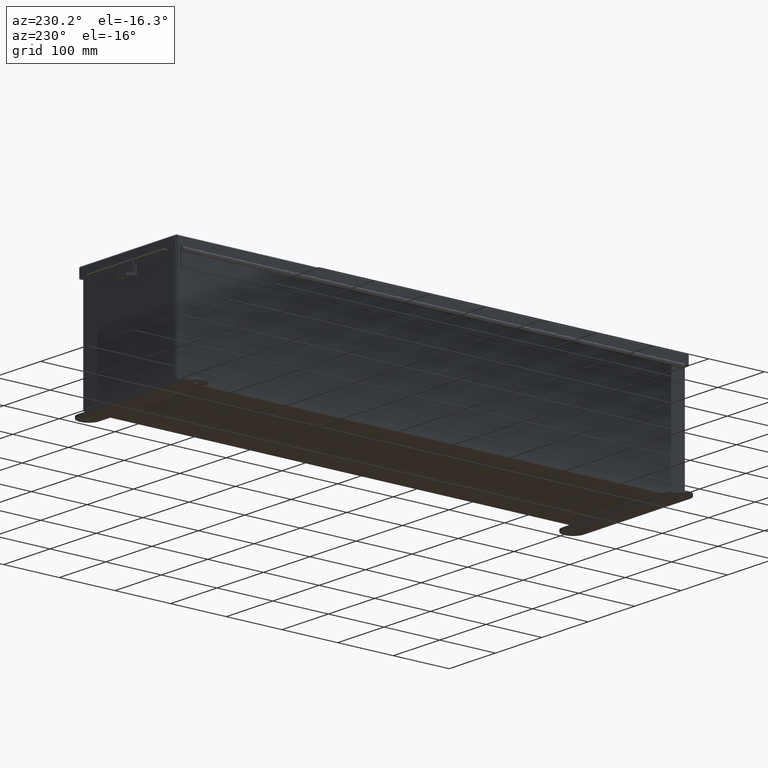
[diagram: clean part render]
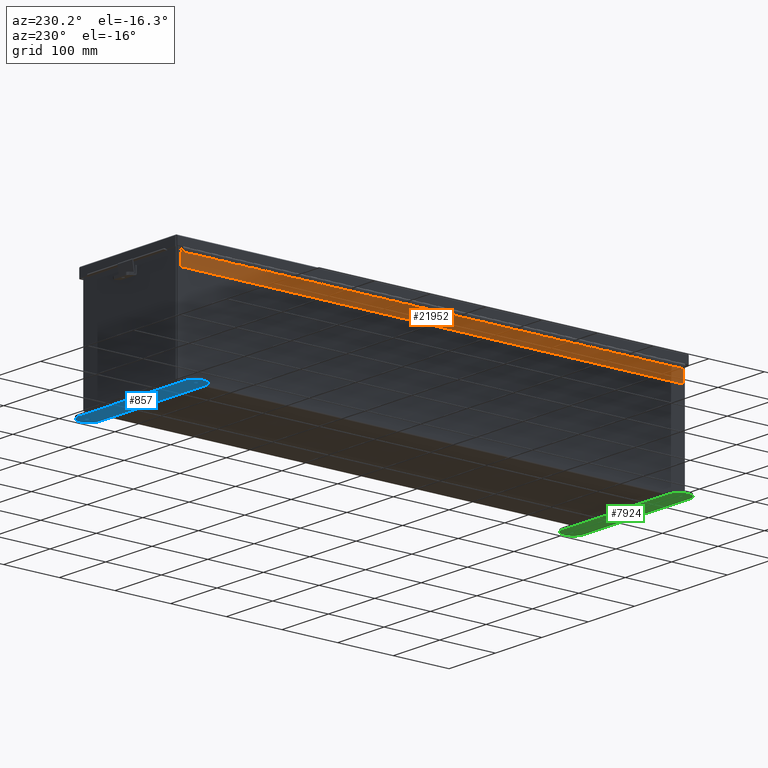
[diagram: same view with three faces highlighted in distinct colors, each labeled with its STEP entity id]
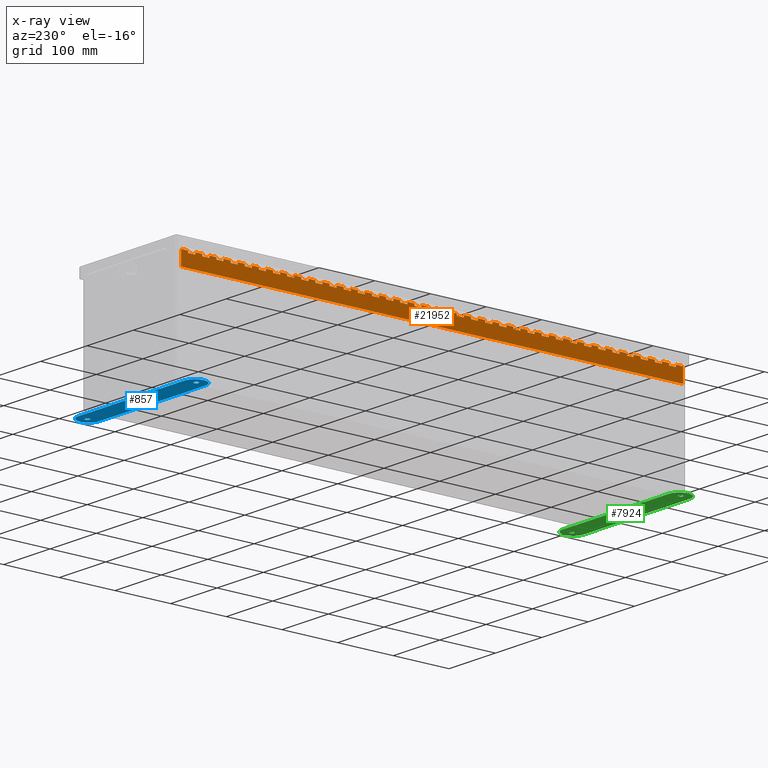
[diagram: x-ray of the same camera — body ghosted, the three highlighted faces saturated]
A machine part, auxiliary view with three faces highlighted in distinct colors.
The next image is the same camera in x-ray (body ghosted, the three faces saturated) — at least one of them is partly hidden behind the body in this view.
Their STEP definitions:

[orange] entity #21952 — the highlighted planar face has unit normal (1, -0, 0).
#5 = EDGE_CURVE ( 'NONE', #345, #17720, #3837, .T. ) ;
#13 = VERTEX_POINT ( 'NONE', #1578 ) ;
#36 = CARTESIAN_POINT ( 'NONE',  ( 0.2729999999999989700, 12.99999999999999300, 1.092739197465705300E-015 ) ) ;
#91 = EDGE_CURVE ( 'NONE', #1788, #345, #19818, .T. ) ;
#93 = VECTOR ( 'NONE', #17547, 39.37007874015748100 ) ;
#114 = ORIENTED_EDGE ( 'NONE', *, *, #22981, .F. ) ;
#117 = LINE ( 'NONE', #902, #12580 ) ;
#133 = EDGE_CURVE ( 'NONE', #14898, #1788, #6410, .T. ) ;
#180 = ORIENTED_EDGE ( 'NONE', *, *, #18503, .F. ) ;
#205 = EDGE_CURVE ( 'NONE', #14898, #4100, #16333, .T. ) ;
#207 = DIRECTION ( 'NONE',  ( -1.346685630687589600E-017, 1.000000000000000000, -1.066047361788676700E-030 ) ) ;
#212 = VERTEX_POINT ( 'NONE', #19961 ) ;
#216 = DIRECTION ( 'NONE',  ( -1.000000000000000000, 8.013101163815309000E-029, 2.603240987229339000E-029 ) ) ;
#247 = EDGE_CURVE ( 'NONE', #10452, #4100, #14948, .T. ) ;
#288 = EDGE_CURVE ( 'NONE', #6674, #10452, #24687, .T. ) ;
#308 = EDGE_CURVE ( 'NONE', #28410, #15100, #23992, .T. ) ;
#335 = EDGE_CURVE ( 'NONE', #18965, #6674, #23280, .T. ) ;
#345 = VERTEX_POINT ( 'NONE', #18168 ) ;
#365 = VERTEX_POINT ( 'NONE', #1592 ) ;
#391 = CARTESIAN_POINT ( 'NONE',  ( 0.1365000000000000400, 0.0000000000000000000, 1.639108796198557900E-015 ) ) ;
#409 = LINE ( 'NONE', #20000, #21821 ) ;
#431 = EDGE_CURVE ( 'NONE', #18965, #15647, #3811, .T. ) ;
#455 = CARTESIAN_POINT ( 'NONE',  ( 0.1364999999999880200, 16.49999999999998900, 5.463695987328526400E-016 ) ) ;
#487 = DIRECTION ( 'NONE',  ( -1.000000000000000000, 8.013101163815309000E-029, 2.603240987229339000E-029 ) ) ;
#491 = EDGE_CURVE ( 'NONE', #14647, #20477, #23637, .T. ) ;
#515 = EDGE_CURVE ( 'NONE', #12311, #15647, #16995, .T. ) ;
#524 = DIRECTION ( 'NONE',  ( -8.013101163815309000E-029, 1.000000000000000000, -6.810147738116276900E-017 ) ) ;
#536 = LINE ( 'NONE', #6670, #12296 ) ;
#587 = CARTESIAN_POINT ( 'NONE',  ( 0.0000000000000000000, 2.999999999999993300, -3.824587191129968100E-015 ) ) ;
#616 = EDGE_CURVE ( 'NONE', #26922, #12311, #25324, .T. ) ;
#626 = VERTEX_POINT ( 'NONE', #901 ) ;
#649 = DIRECTION ( 'NONE',  ( -1.346685630687589600E-017, 1.000000000000000000, -1.066047361788676700E-030 ) ) ;
#669 = EDGE_CURVE ( 'NONE', #12020, #26922, #12223, .T. ) ;
#679 = LINE ( 'NONE', #17917, #6193 ) ;
#680 = VERTEX_POINT ( 'NONE', #28075 ) ;
#697 = CARTESIAN_POINT ( 'NONE',  ( 0.1365000000000000400, 23.49999999999999300, 0.0000000000000000000 ) ) ;
#726 = DIRECTION ( 'NONE',  ( -1.346685630687589600E-017, 1.000000000000000000, -1.066047361788676700E-030 ) ) ;
#753 = EDGE_CURVE ( 'NONE', #12020, #23545, #3783, .T. ) ;
#779 = CARTESIAN_POINT ( 'NONE',  ( 0.2730000000000000800, 7.999999999999993800, 2.185478394931410600E-015 ) ) ;
#790 = ORIENTED_EDGE ( 'NONE', *, *, #15547, .T. ) ;
#803 = EDGE_CURVE ( 'NONE', #6368, #23545, #8556, .T. ) ;
#816 = EDGE_CURVE ( 'NONE', #23621, #6368, #7841, .T. ) ;
#826 = LINE ( 'NONE', #28203, #93 ) ;
#843 = VERTEX_POINT ( 'NONE', #24572 ) ;
#886 = DIRECTION ( 'NONE',  ( -1.000000000000000000, 8.013101163815309000E-029, 2.603240987229339000E-029 ) ) ;
#895 = EDGE_CURVE ( 'NONE', #18681, #23621, #11859, .T. ) ;
#901 = CARTESIAN_POINT ( 'NONE',  ( 0.2729999999999989700, 34.49999999999999300, 0.0000000000000000000 ) ) ;
#902 = CARTESIAN_POINT ( 'NONE',  ( 0.0000000000000000000, 34.49999999999999300, 0.0000000000000000000 ) ) ;
#908 = VECTOR ( 'NONE', #20542, 39.37007874015748100 ) ;
#916 = EDGE_CURVE ( 'NONE', #22251, #10091, #15601, .T. ) ;
#930 = CARTESIAN_POINT ( 'NONE',  ( 0.2730000000000000800, -0.9999999999999992200, 0.0000000000000000000 ) ) ;
#945 = EDGE_CURVE ( 'NONE', #18681, #23829, #25299, .T. ) ;
#1027 = EDGE_CURVE ( 'NONE', #16324, #23829, #5232, .T. ) ;
#1070 = EDGE_CURVE ( 'NONE', #843, #16324, #3747, .T. ) ;
#1075 = ORIENTED_EDGE ( 'NONE', *, *, #25761, .F. ) ;
#1104 = CARTESIAN_POINT ( 'NONE',  ( 0.2730000000000000800, 20.49999999999998900, 1.092739197465705300E-015 ) ) ;
#1120 = EDGE_CURVE ( 'NONE', #15327, #843, #13204, .T. ) ;
#1156 = ORIENTED_EDGE ( 'NONE', *, *, #1327, .T. ) ;
#1175 = ORIENTED_EDGE ( 'NONE', *, *, #12664, .F. ) ;
#1176 = VECTOR ( 'NONE', #16857, 39.37007874015748100 ) ;
#1210 = LINE ( 'NONE', #16036, #24644 ) ;
#1221 = EDGE_CURVE ( 'NONE', #15327, #22045, #16252, .T. ) ;
#1260 = EDGE_CURVE ( 'NONE', #14529, #22045, #2652, .T. ) ;
#1289 = ORIENTED_EDGE ( 'NONE', *, *, #6404, .F. ) ;
#1296 = VECTOR ( 'NONE', #15422, 39.37007874015748100 ) ;
#1316 = CARTESIAN_POINT ( 'NONE',  ( 0.0000000000000000000, 24.99999999999999300, -4.917326388595674200E-015 ) ) ;
#1327 = EDGE_CURVE ( 'NONE', #1500, #4341, #17265, .T. ) ;
#1329 = LINE ( 'NONE', #10888, #12995 ) ;
#1358 = EDGE_CURVE ( 'NONE', #20104, #14529, #409, .T. ) ;
#1430 = VERTEX_POINT ( 'NONE', #16505 ) ;
#1440 = DIRECTION ( 'NONE',  ( -1.346685630687589600E-017, 1.000000000000000000, -1.066047361788676700E-030 ) ) ;
#1454 = EDGE_CURVE ( 'NONE', #20514, #20104, #20108, .T. ) ;
#1476 = ORIENTED_EDGE ( 'NONE', *, *, #19837, .F. ) ;
#1486 = CARTESIAN_POINT ( 'NONE',  ( 0.2730000000000000800, 19.49999999999998900, 1.092739197465705300E-015 ) ) ;
#1500 = VERTEX_POINT ( 'NONE', #27288 ) ;
#1513 = EDGE_CURVE ( 'NONE', #22182, #16628, #17991, .T. ) ;
#1537 = EDGE_CURVE ( 'NONE', #20514, #27732, #23942, .T. ) ;
#1547 = VECTOR ( 'NONE', #7787, 39.37007874015748100 ) ;
#1549 = EDGE_CURVE ( 'NONE', #4544, #27732, #28496, .T. ) ;
#1578 = CARTESIAN_POINT ( 'NONE',  ( 0.2730000000000000800, 9.999999999999991100, 1.639108796198557900E-015 ) ) ;
#1592 = CARTESIAN_POINT ( 'NONE',  ( 0.2729999999999989700, 32.49999999999999300, 5.463695987328526400E-016 ) ) ;
#1647 = EDGE_CURVE ( 'NONE', #16947, #4544, #4655, .T. ) ;
#1667 = VECTOR ( 'NONE', #886, 39.37007874015748100 ) ;
#1678 = VERTEX_POINT ( 'NONE', #23783 ) ;
#1691 = EDGE_CURVE ( 'NONE', #22794, #16947, #2447, .T. ) ;
#1712 = EDGE_CURVE ( 'NONE', #4463, #8115, #18471, .T. ) ;
#1747 = ORIENTED_EDGE ( 'NONE', *, *, #1712, .F. ) ;
#1788 = VERTEX_POINT ( 'NONE', #15734 ) ;
#1822 = CARTESIAN_POINT ( 'NONE',  ( 0.2729999999999880300, -15.00000000000000900, 1.092739197465705300E-015 ) ) ;
#1909 = EDGE_CURVE ( 'NONE', #22794, #1954, #1329, .T. ) ;
#1927 = ORIENTED_EDGE ( 'NONE', *, *, #25035, .T. ) ;
#1943 = CARTESIAN_POINT ( 'NONE',  ( 0.2730000000000000800, 16.99999999999999300, 1.092739197465705300E-015 ) ) ;
#1954 = VERTEX_POINT ( 'NONE', #5509 ) ;
#1956 = EDGE_CURVE ( 'NONE', #17920, #1954, #22650, .T. ) ;
#1966 = ORIENTED_EDGE ( 'NONE', *, *, #3541, .T. ) ;
#2003 = EDGE_CURVE ( 'NONE', #4518, #17920, #27177, .T. ) ;
#2040 = CARTESIAN_POINT ( 'NONE',  ( 0.1364999999999880200, 15.99999999999999300, 5.463695987328526400E-016 ) ) ;
#2079 = VERTEX_POINT ( 'NONE', #17512 ) ;
#2126 = CARTESIAN_POINT ( 'NONE',  ( -1.202013117212275700E-014, 5.499999999999992900, 1.639108796198557900E-015 ) ) ;
#2135 = EDGE_CURVE ( 'NONE', #10681, #4518, #5706, .T. ) ;
#2155 = EDGE_LOOP ( 'NONE', ( #8483, #27720, #11437, #23186, #1156, #15562, #16244, #22177, #22852, #28829, #25620, #3027, #15231, #10722, #22533, #3965, #18220, #24173, #1075, #1476, #6346, #8829, #8882, #11503, #11798, #13199, #14554, #14789, #16917, #16970, #18991, #20472, #21482, #22507, #22512, #26682, #27762, #27788, #114, #180, #790, #1175, #1289, #1747, #1927, #2769, #3038, #3115, #3547, #3575, #4556, #4590, #5130, #5266, #6147, #6175, #6441, #6529, #8046, #8596, #8739, #9052, #9534, #10166, #10236, #10983, #11418, #11803, #11887, #12171, #13012, #13428, #13454, #13911, #14450, #14952, #15086, #15731, #15757, #16561, #16770, #16798, #17043, #17094, #17784, #18156, #18225, #18432, #18493, #19072, #19417, #19451, #19855, #19975, #20677, #21154, #21180, #21599, #21679, #22104, #22622, #22757, #23049, #23089, #23639, #23941, #23974, #24509, #24640, #25352, #25681, #25701, #26196, #26228, #26882, #27219, #27312, #27708, #27770, #28549, #28763, #28914, #29246, #29269, #1966, #2424, #4063, #4099, #5778, #5985, #6077, #7639, #8058, #8106, #8454, #9487, #9975, #10072, #10463, #11670, #12271, #12337, #12820, #13896 ) ) ;
#2173 = EDGE_CURVE ( 'NONE', #10681, #16251, #26804, .T. ) ;
#2197 = VERTEX_POINT ( 'NONE', #16541 ) ;
#2247 = CARTESIAN_POINT ( 'NONE',  ( 0.0000000000000000000, 19.99999999999999300, 1.092739197465705300E-015 ) ) ;
#2252 = EDGE_CURVE ( 'NONE', #1430, #16251, #8272, .T. ) ;
#2255 = CARTESIAN_POINT ( 'NONE',  ( 0.1365000000000000400, 6.499999999999992000, 1.639108796198557900E-015 ) ) ;
#2273 = EDGE_CURVE ( 'NONE', #5620, #10997, #536, .T. ) ;
#2275 = LINE ( 'NONE', #6881, #7785 ) ;
#2284 = VECTOR ( 'NONE', #4351, 39.37007874015748100 ) ;
#2300 = EDGE_CURVE ( 'NONE', #14674, #1430, #11572, .T. ) ;
#2307 = LINE ( 'NONE', #3856, #20458 ) ;
#2323 = DIRECTION ( 'NONE',  ( -1.000000000000000000, 8.013101163815309000E-029, 2.603240987229339000E-029 ) ) ;
#2339 = VERTEX_POINT ( 'NONE', #11583 ) ;
#2340 = DIRECTION ( 'NONE',  ( -1.000000000000000000, 8.013101163815309000E-029, 2.603240987229339000E-029 ) ) ;
#2349 = EDGE_CURVE ( 'NONE', #8796, #14674, #4597, .T. ) ;
#2391 = EDGE_CURVE ( 'NONE', #8796, #16466, #8633, .T. ) ;
#2416 = DIRECTION ( 'NONE',  ( -1.346685630687589600E-017, 1.000000000000000000, -1.066047361788676700E-030 ) ) ;
#2424 = ORIENTED_EDGE ( 'NONE', *, *, #3545, .F. ) ;
#2437 = VERTEX_POINT ( 'NONE', #17694 ) ;
#2438 = DIRECTION ( 'NONE',  ( -8.013101163815309000E-029, 1.000000000000000000, -6.810147738116276900E-017 ) ) ;
#2447 = LINE ( 'NONE', #28111, #25103 ) ;
#2462 = CARTESIAN_POINT ( 'NONE',  ( 0.2730000000000000800, 27.99999999999999300, 5.463695987328526400E-016 ) ) ;
#2466 = VERTEX_POINT ( 'NONE', #11311 ) ;
#2479 = EDGE_CURVE ( 'NONE', #25947, #16466, #5680, .T. ) ;
#2482 = DIRECTION ( 'NONE',  ( -1.000000000000000000, 8.013101163815309000E-029, 2.603240987229339000E-029 ) ) ;
#2501 = LINE ( 'NONE', #22029, #12732 ) ;
#2525 = EDGE_CURVE ( 'NONE', #21646, #25947, #20865, .T. ) ;
#2543 = LINE ( 'NONE', #7897, #25853 ) ;
#2551 = CARTESIAN_POINT ( 'NONE',  ( 0.0000000000000000000, 19.49999999999998900, 1.092739197465705300E-015 ) ) ;
#2572 = EDGE_CURVE ( 'NONE', #17487, #21646, #25359, .T. ) ;
#2574 = CARTESIAN_POINT ( 'NONE',  ( 0.0000000000000000000, 9.999999999999991100, 1.639108796198557900E-015 ) ) ;
#2617 = EDGE_CURVE ( 'NONE', #17487, #19495, #7509, .T. ) ;
#2630 = VECTOR ( 'NONE', #24780, 39.37007874015748100 ) ;
#2652 = LINE ( 'NONE', #25073, #8142 ) ;
#2660 = EDGE_CURVE ( 'NONE', #26581, #19495, #16666, .T. ) ;
#2662 = LINE ( 'NONE', #26406, #20785 ) ;
#2689 = LINE ( 'NONE', #15599, #7452 ) ;
#2707 = EDGE_CURVE ( 'NONE', #13, #26581, #9332, .T. ) ;
#2732 = CARTESIAN_POINT ( 'NONE',  ( 0.2729999999999989700, 21.99999999999998900, 1.092739197465705300E-015 ) ) ;
#2742 = LINE ( 'NONE', #16816, #21577 ) ;
#2769 = ORIENTED_EDGE ( 'NONE', *, *, #20569, .F. ) ;
#2788 = VERTEX_POINT ( 'NONE', #20946 ) ;
#2800 = EDGE_CURVE ( 'NONE', #7744, #13, #11894, .T. ) ;
#2801 = DIRECTION ( 'NONE',  ( -1.346685630687589600E-017, 1.000000000000000000, -1.066047361788676700E-030 ) ) ;
#2892 = EDGE_CURVE ( 'NONE', #7744, #18488, #14933, .T. ) ;
#2934 = EDGE_CURVE ( 'NONE', #4962, #18488, #8958, .T. ) ;
#2968 = VECTOR ( 'NONE', #26186, 39.37007874015748100 ) ;
#2976 = CARTESIAN_POINT ( 'NONE',  ( 0.0000000000000000000, 18.99999999999999300, -4.917326388595674200E-015 ) ) ;
#3027 = ORIENTED_EDGE ( 'NONE', *, *, #308, .F. ) ;
#3038 = ORIENTED_EDGE ( 'NONE', *, *, #16089, .F. ) ;
#3039 = DIRECTION ( 'NONE',  ( -1.000000000000000000, 8.013101163815309000E-029, 2.603240987229339000E-029 ) ) ;
#3056 = VERTEX_POINT ( 'NONE', #4517 ) ;
#3066 = EDGE_CURVE ( 'NONE', #9442, #4962, #10022, .T. ) ;
#3069 = CARTESIAN_POINT ( 'NONE',  ( 0.1365000000000000400, 0.0000000000000000000, 1.639108796198557900E-015 ) ) ;
#3114 = EDGE_CURVE ( 'NONE', #27987, #9442, #25003, .T. ) ;
#3115 = ORIENTED_EDGE ( 'NONE', *, *, #13183, .F. ) ;
#3149 = CARTESIAN_POINT ( 'NONE',  ( 0.2729999999999989700, 24.49999999999998900, 1.092739197465705300E-015 ) ) ;
#3201 = EDGE_CURVE ( 'NONE', #27987, #11298, #17663, .T. ) ;
#3209 = CARTESIAN_POINT ( 'NONE',  ( 1.136500000000000300, 0.0000000000000000000, 6.010065586061378700E-015 ) ) ;
#3215 = VECTOR ( 'NONE', #3520, 39.37007874015748100 ) ;
#3240 = EDGE_CURVE ( 'NONE', #2079, #11298, #11126, .T. ) ;
#3243 = EDGE_CURVE ( 'NONE', #7060, #2079, #22224, .T. ) ;
#3281 = EDGE_CURVE ( 'NONE', #26270, #7060, #21528, .T. ) ;
#3303 = CARTESIAN_POINT ( 'NONE',  ( 0.1365000000000000400, 0.0000000000000000000, 1.639108796198557900E-015 ) ) ;
#3321 = EDGE_CURVE ( 'NONE', #26270, #23835, #1210, .T. ) ;
#3327 = EDGE_CURVE ( 'NONE', #16780, #23835, #2689, .T. ) ;
#3380 = EDGE_CURVE ( 'NONE', #21027, #16780, #5241, .T. ) ;
#3403 = CARTESIAN_POINT ( 'NONE',  ( 0.1365000000000000400, 0.0000000000000000000, 1.639108796198557900E-015 ) ) ;
#3404 = DIRECTION ( 'NONE',  ( -8.013101163815309000E-029, 1.000000000000000000, -6.810147738116276900E-017 ) ) ;
#3421 = EDGE_CURVE ( 'NONE', #1678, #21027, #27776, .T. ) ;
#3424 = EDGE_CURVE ( 'NONE', #1678, #22748, #21860, .T. ) ;
#3456 = EDGE_CURVE ( 'NONE', #5916, #22748, #2307, .T. ) ;
#3459 = EDGE_CURVE ( 'NONE', #19754, #5916, #8533, .T. ) ;
#3481 = CARTESIAN_POINT ( 'NONE',  ( 0.0000000000000000000, 24.49999999999998900, 5.463695987328526400E-016 ) ) ;
#3498 = EDGE_CURVE ( 'NONE', #17259, #19754, #826, .T. ) ;
#3520 = DIRECTION ( 'NONE',  ( -1.000000000000000000, 8.013101163815309000E-029, 2.603240987229339000E-029 ) ) ;
#3541 = EDGE_CURVE ( 'NONE', #17259, #10563, #22194, .T. ) ;
#3545 = EDGE_CURVE ( 'NONE', #24224, #10563, #10335, .T. ) ;
#3547 = ORIENTED_EDGE ( 'NONE', *, *, #6999, .T. ) ;
#3552 = EDGE_CURVE ( 'NONE', #22996, #24224, #4873, .T. ) ;
#3558 = DIRECTION ( 'NONE',  ( -1.000000000000000000, 8.013101163815309000E-029, 2.603240987229339000E-029 ) ) ;
#3575 = ORIENTED_EDGE ( 'NONE', *, *, #2273, .F. ) ;
#3593 = EDGE_CURVE ( 'NONE', #19140, #22996, #2662, .T. ) ;
#3595 = LINE ( 'NONE', #29441, #14397 ) ;
#3633 = EDGE_CURVE ( 'NONE', #19140, #19269, #18670, .T. ) ;
#3640 = EDGE_CURVE ( 'NONE', #25247, #19269, #13528, .T. ) ;
#3643 = EDGE_CURVE ( 'NONE', #14365, #25247, #12868, .T. ) ;
#3665 = CARTESIAN_POINT ( 'NONE',  ( 0.2729999999999989700, 32.99999999999999300, 0.0000000000000000000 ) ) ;
#3672 = DIRECTION ( 'NONE',  ( -1.000000000000000000, 8.013101163815309000E-029, 2.603240987229339000E-029 ) ) ;
#3679 = EDGE_CURVE ( 'NONE', #29284, #14365, #5217, .T. ) ;
#3684 = EDGE_CURVE ( 'NONE', #29284, #20565, #5951, .T. ) ;
#3689 = EDGE_CURVE ( 'NONE', #27551, #20565, #16588, .T. ) ;
#3718 = LINE ( 'NONE', #8847, #21112 ) ;
#3725 = EDGE_CURVE ( 'NONE', #20073, #27551, #21127, .T. ) ;
#3738 = LINE ( 'NONE', #3874, #2284 ) ;
#3747 = LINE ( 'NONE', #4569, #15237 ) ;
#3766 = EDGE_CURVE ( 'NONE', #10771, #20073, #2275, .T. ) ;
#3771 = EDGE_CURVE ( 'NONE', #10771, #2437, #13864, .T. ) ;
#3775 = EDGE_CURVE ( 'NONE', #28504, #2437, #25611, .T. ) ;
#3783 = LINE ( 'NONE', #8935, #21176 ) ;
#3810 = EDGE_CURVE ( 'NONE', #20828, #28504, #12527, .T. ) ;
#3811 = LINE ( 'NONE', #21905, #25678 ) ;
#3816 = EDGE_CURVE ( 'NONE', #7612, #20828, #17610, .T. ) ;
#3827 = CARTESIAN_POINT ( 'NONE',  ( 0.2729999999999989700, 10.99999999999999500, 1.639108796198557900E-015 ) ) ;
#3837 = LINE ( 'NONE', #3403, #27141 ) ;
#3856 = CARTESIAN_POINT ( 'NONE',  ( 0.1365000000000000400, 0.0000000000000000000, 1.639108796198557900E-015 ) ) ;
#3857 = CARTESIAN_POINT ( 'NONE',  ( 0.0000000000000000000, 28.49999999999999300, 5.463695987328526400E-016 ) ) ;
#3861 = EDGE_CURVE ( 'NONE', #7612, #27227, #16928, .T. ) ;
#3874 = CARTESIAN_POINT ( 'NONE',  ( 0.1365000000000000400, 0.0000000000000000000, 1.639108796198557900E-015 ) ) ;
#3894 = EDGE_CURVE ( 'NONE', #11114, #27227, #10300, .T. ) ;
#3900 = EDGE_CURVE ( 'NONE', #12027, #11114, #4095, .T. ) ;
#3904 = EDGE_CURVE ( 'NONE', #24231, #12027, #20762, .T. ) ;
#3905 = VERTEX_POINT ( 'NONE', #11829 ) ;
#3925 = DIRECTION ( 'NONE',  ( -1.346685630687589600E-017, 1.000000000000000000, -1.066047361788676700E-030 ) ) ;
#3941 = CARTESIAN_POINT ( 'NONE',  ( 0.2730000000000000800, 29.49999999999998900, 5.463695987328526400E-016 ) ) ;
#3965 = ORIENTED_EDGE ( 'NONE', *, *, #11927, .F. ) ;
#3993 = LINE ( 'NONE', #22061, #27277 ) ;
#3994 = CARTESIAN_POINT ( 'NONE',  ( -1.202013117212275700E-014, 26.49999999999999300, 5.463695987328526400E-016 ) ) ;
#4000 = VERTEX_POINT ( 'NONE', #19747 ) ;
#4063 = ORIENTED_EDGE ( 'NONE', *, *, #3552, .F. ) ;
#4066 = CARTESIAN_POINT ( 'NONE',  ( 0.2730000000000000800, -12.00000000000000700, 1.092739197465705300E-015 ) ) ;
#4069 = CARTESIAN_POINT ( 'NONE',  ( 0.1365000000000000400, 12.49999999999999100, 1.092739197465705300E-015 ) ) ;
#4074 = DIRECTION ( 'NONE',  ( -1.346685630687589600E-017, 1.000000000000000000, -1.066047361788676700E-030 ) ) ;
#4095 = LINE ( 'NONE', #24439, #14851 ) ;
#4099 = ORIENTED_EDGE ( 'NONE', *, *, #3593, .F. ) ;
#4100 = VERTEX_POINT ( 'NONE', #14377 ) ;
#4141 = VECTOR ( 'NONE', #25532, 39.37007874015748100 ) ;
#4170 = DIRECTION ( 'NONE',  ( -1.346685630687589600E-017, 1.000000000000000000, -1.066047361788676700E-030 ) ) ;
#4190 = DIRECTION ( 'NONE',  ( -1.000000000000000000, 8.013101163815309000E-029, 2.603240987229339000E-029 ) ) ;
#4206 = CARTESIAN_POINT ( 'NONE',  ( 0.0000000000000000000, 29.99999999999999300, 5.463695987328526400E-016 ) ) ;
#4283 = CARTESIAN_POINT ( 'NONE',  ( 0.0000000000000000000, 7.999999999999993800, 1.639108796198557900E-015 ) ) ;
#4299 = CARTESIAN_POINT ( 'NONE',  ( 0.1365000000000000400, 18.49999999999999300, 5.463695987328526400E-016 ) ) ;
#4323 = LINE ( 'NONE', #17999, #9813 ) ;
#4341 = VERTEX_POINT ( 'NONE', #22613 ) ;
#4351 = DIRECTION ( 'NONE',  ( -8.013101163815309000E-029, 1.000000000000000000, -6.810147738116276900E-017 ) ) ;
#4402 = DIRECTION ( 'NONE',  ( -8.013101163815309000E-029, 1.000000000000000000, -6.810147738116276900E-017 ) ) ;
#4426 = DIRECTION ( 'NONE',  ( -8.013101163815309000E-029, 1.000000000000000000, -6.810147738116276900E-017 ) ) ;
#4463 = VERTEX_POINT ( 'NONE', #25549 ) ;
#4517 = CARTESIAN_POINT ( 'NONE',  ( 0.2729999999999989700, 23.49999999999999300, 5.463695987328526400E-016 ) ) ;
#4518 = VERTEX_POINT ( 'NONE', #36 ) ;
#4523 = DIRECTION ( 'NONE',  ( -1.000000000000000000, 8.013101163815309000E-029, 2.603240987229339000E-029 ) ) ;
#4544 = VERTEX_POINT ( 'NONE', #18751 ) ;
#4556 = ORIENTED_EDGE ( 'NONE', *, *, #25560, .F. ) ;
#4569 = CARTESIAN_POINT ( 'NONE',  ( -1.202013117212275700E-014, 15.99999999999999300, 1.092739197465705300E-015 ) ) ;
#4590 = ORIENTED_EDGE ( 'NONE', *, *, #19613, .F. ) ;
#4597 = LINE ( 'NONE', #8377, #21937 ) ;
#4616 = CARTESIAN_POINT ( 'NONE',  ( 0.1365000000000000400, 0.0000000000000000000, 1.639108796198557900E-015 ) ) ;
#4623 = VECTOR ( 'NONE', #2482, 39.37007874015748100 ) ;
#4655 = LINE ( 'NONE', #5247, #9423 ) ;
#4680 = VECTOR ( 'NONE', #10319, 39.37007874015748100 ) ;
#4700 = LINE ( 'NONE', #8443, #27243 ) ;
#4732 = CARTESIAN_POINT ( 'NONE',  ( 0.1365000000000000400, 0.0000000000000000000, 1.639108796198557900E-015 ) ) ;
#4795 = CARTESIAN_POINT ( 'NONE',  ( 0.0000000000000000000, 27.99999999999999300, 5.463695987328526400E-016 ) ) ;
#4831 = VECTOR ( 'NONE', #726, 39.37007874015748100 ) ;
#4873 = LINE ( 'NONE', #8816, #21498 ) ;
#4917 = CARTESIAN_POINT ( 'NONE',  ( 0.0000000000000000000, 25.99999999999999300, 5.463695987328526400E-016 ) ) ;
#4943 = DIRECTION ( 'NONE',  ( -1.000000000000000000, 8.013101163815309000E-029, 2.603240987229339000E-029 ) ) ;
#4962 = VERTEX_POINT ( 'NONE', #22335 ) ;
#4979 = LINE ( 'NONE', #17224, #26069 ) ;
#5064 = EDGE_CURVE ( 'NONE', #15100, #5354, #20382, .T. ) ;
#5130 = ORIENTED_EDGE ( 'NONE', *, *, #16634, .T. ) ;
#5174 = DIRECTION ( 'NONE',  ( -1.000000000000000000, 8.013101163815309000E-029, 2.603240987229339000E-029 ) ) ;
#5217 = LINE ( 'NONE', #6634, #10708 ) ;
#5232 = LINE ( 'NONE', #7532, #17291 ) ;
#5234 = EDGE_CURVE ( 'NONE', #20477, #20553, #14126, .T. ) ;
#5236 = VECTOR ( 'NONE', #14654, 39.37007874015748100 ) ;
#5241 = LINE ( 'NONE', #22767, #16617 ) ;
#5247 = CARTESIAN_POINT ( 'NONE',  ( 0.0000000000000000000, 13.99999999999999300, 1.639108796198557900E-015 ) ) ;
#5252 = DIRECTION ( 'NONE',  ( -8.013101163815309000E-029, 1.000000000000000000, -6.810147738116276900E-017 ) ) ;
#5266 = ORIENTED_EDGE ( 'NONE', *, *, #10706, .F. ) ;
#5296 = VECTOR ( 'NONE', #11351, 39.37007874015748100 ) ;
#5354 = VERTEX_POINT ( 'NONE', #28833 ) ;
#5393 = LINE ( 'NONE', #25584, #20205 ) ;
#5448 = DIRECTION ( 'NONE',  ( -1.000000000000000000, 8.013101163815309000E-029, 2.603240987229339000E-029 ) ) ;
#5454 = DIRECTION ( 'NONE',  ( -8.013101163815309000E-029, 1.000000000000000000, -6.810147738116276900E-017 ) ) ;
#5489 = DIRECTION ( 'NONE',  ( -1.000000000000000000, 8.013101163815309000E-029, 2.603240987229339000E-029 ) ) ;
#5509 = CARTESIAN_POINT ( 'NONE',  ( 0.1365000000000000400, 13.49999999999999100, 5.463695987328526400E-016 ) ) ;
#5524 = CARTESIAN_POINT ( 'NONE',  ( 0.1365000000000000400, 0.0000000000000000000, 1.639108796198557900E-015 ) ) ;
#5620 = VERTEX_POINT ( 'NONE', #22950 ) ;
#5643 = VECTOR ( 'NONE', #4426, 39.37007874015748100 ) ;
#5657 = VERTEX_POINT ( 'NONE', #22048 ) ;
#5680 = LINE ( 'NONE', #4732, #22948 ) ;
#5706 = LINE ( 'NONE', #21920, #28960 ) ;
#5710 = CARTESIAN_POINT ( 'NONE',  ( 0.1365000000000000400, 16.99999999999999300, 5.463695987328526400E-016 ) ) ;
#5733 = VECTOR ( 'NONE', #20304, 39.37007874015748100 ) ;
#5778 = ORIENTED_EDGE ( 'NONE', *, *, #3633, .T. ) ;
#5785 = CARTESIAN_POINT ( 'NONE',  ( 0.0000000000000000000, 20.49999999999998900, 1.092739197465705300E-015 ) ) ;
#5818 = EDGE_CURVE ( 'NONE', #2788, #20963, #679, .T. ) ;
#5916 = VERTEX_POINT ( 'NONE', #15784 ) ;
#5951 = LINE ( 'NONE', #18192, #28474 ) ;
#5968 = VERTEX_POINT ( 'NONE', #14955 ) ;
#5977 = VECTOR ( 'NONE', #24775, 39.37007874015748100 ) ;
#5985 = ORIENTED_EDGE ( 'NONE', *, *, #3640, .F. ) ;
#6001 = EDGE_CURVE ( 'NONE', #2466, #9046, #23789, .T. ) ;
#6007 = VECTOR ( 'NONE', #15283, 39.37007874015748100 ) ;
#6077 = ORIENTED_EDGE ( 'NONE', *, *, #3643, .F. ) ;
#6113 = CARTESIAN_POINT ( 'NONE',  ( 0.1365000000000000400, 32.49999999999999300, -5.463695987328526400E-016 ) ) ;
#6132 = CARTESIAN_POINT ( 'NONE',  ( 0.2730000000000000800, 6.999999999999993800, 1.639108796198557900E-015 ) ) ;
#6145 = CARTESIAN_POINT ( 'NONE',  ( 0.2729999999999978600, 25.99999999999999300, 5.463695987328526400E-016 ) ) ;
#6147 = ORIENTED_EDGE ( 'NONE', *, *, #6001, .F. ) ;
#6166 = VECTOR ( 'NONE', #28066, 39.37007874015748100 ) ;
#6175 = ORIENTED_EDGE ( 'NONE', *, *, #29190, .F. ) ;
#6187 = CARTESIAN_POINT ( 'NONE',  ( 0.2730000000000000800, 29.99999999999999300, 5.463695987328526400E-016 ) ) ;
#6193 = VECTOR ( 'NONE', #17794, 39.37007874015748100 ) ;
#6200 = CARTESIAN_POINT ( 'NONE',  ( 0.2729999999999880300, -25.00000000000001100, 1.639108796198557900E-015 ) ) ;
#6225 = EDGE_CURVE ( 'NONE', #22182, #19408, #4700, .T. ) ;
#6264 = DIRECTION ( 'NONE',  ( -1.346685630687589600E-017, 1.000000000000000000, -1.066047361788676700E-030 ) ) ;
#6278 = CARTESIAN_POINT ( 'NONE',  ( 0.2729999999999989700, 11.49999999999999300, 1.639108796198557900E-015 ) ) ;
#6293 = CARTESIAN_POINT ( 'NONE',  ( 0.2729999999999880300, 5.499999999999992900, 2.185478394931410600E-015 ) ) ;
#6300 = DIRECTION ( 'NONE',  ( -8.013101163815309000E-029, 1.000000000000000000, -6.810147738116276900E-017 ) ) ;
#6306 = VECTOR ( 'NONE', #6608, 39.37007874015748100 ) ;
#6346 = ORIENTED_EDGE ( 'NONE', *, *, #16848, .T. ) ;
#6347 = VERTEX_POINT ( 'NONE', #6187 ) ;
#6368 = VERTEX_POINT ( 'NONE', #5710 ) ;
#6404 = EDGE_CURVE ( 'NONE', #8115, #680, #9802, .T. ) ;
#6406 = CARTESIAN_POINT ( 'NONE',  ( 0.2729999999999989700, 31.49999999999999300, 0.0000000000000000000 ) ) ;
#6410 = LINE ( 'NONE', #1822, #17708 ) ;
#6411 = CARTESIAN_POINT ( 'NONE',  ( 0.2729999999999989700, 0.4999999999999930100, 2.731847993664263200E-015 ) ) ;
#6441 = ORIENTED_EDGE ( 'NONE', *, *, #26108, .T. ) ;
#6493 = DIRECTION ( 'NONE',  ( -1.346685630687589600E-017, 1.000000000000000000, -1.066047361788676700E-030 ) ) ;
#6529 = ORIENTED_EDGE ( 'NONE', *, *, #21689, .F. ) ;
#6574 = VERTEX_POINT ( 'NONE', #27201 ) ;
#6589 = EDGE_CURVE ( 'NONE', #3905, #24370, #5393, .T. ) ;
#6608 = DIRECTION ( 'NONE',  ( -1.000000000000000000, 8.013101163815309000E-029, 2.603240987229339000E-029 ) ) ;
#6634 = CARTESIAN_POINT ( 'NONE',  ( 0.2730000000000000800, -31.00000000000001400, 2.185478394931410600E-015 ) ) ;
#6641 = CARTESIAN_POINT ( 'NONE',  ( 0.1365000000000000400, 34.49999999999999300, -5.463695987328526400E-016 ) ) ;
#6670 = CARTESIAN_POINT ( 'NONE',  ( 0.1365000000000000400, 0.0000000000000000000, 1.639108796198557900E-015 ) ) ;
#6674 = VERTEX_POINT ( 'NONE', #21917 ) ;
#6689 = VECTOR ( 'NONE', #19441, 39.37007874015748100 ) ;
#6700 = CARTESIAN_POINT ( 'NONE',  ( 0.2729999999999989700, 22.49999999999999300, 1.092739197465705300E-015 ) ) ;
#6706 = DIRECTION ( 'NONE',  ( -1.000000000000000000, 8.013101163815309000E-029, 2.603240987229339000E-029 ) ) ;
#6809 = VERTEX_POINT ( 'NONE', #13720 ) ;
#6839 = VECTOR ( 'NONE', #13621, 39.37007874015748100 ) ;
#6866 = DIRECTION ( 'NONE',  ( -8.013101163815309000E-029, 1.000000000000000000, -6.810147738116276900E-017 ) ) ;
#6881 = CARTESIAN_POINT ( 'NONE',  ( 0.2730000000000000800, -32.00000000000000700, 2.185478394931410600E-015 ) ) ;
#6932 = VERTEX_POINT ( 'NONE', #6406 ) ;
#6969 = CARTESIAN_POINT ( 'NONE',  ( 0.1365000000000000400, 0.0000000000000000000, 1.639108796198557900E-015 ) ) ;
#6999 = EDGE_CURVE ( 'NONE', #26136, #10997, #8254, .T. ) ;
#7060 = VERTEX_POINT ( 'NONE', #779 ) ;
#7118 = VERTEX_POINT ( 'NONE', #28164 ) ;
#7203 = LINE ( 'NONE', #7637, #18451 ) ;
#7213 = EDGE_CURVE ( 'NONE', #365, #10091, #18398, .T. ) ;
#7275 = VECTOR ( 'NONE', #28840, 39.37007874015748100 ) ;
#7402 = CARTESIAN_POINT ( 'NONE',  ( 0.1365000000000000400, 28.49999999999999300, 0.0000000000000000000 ) ) ;
#7427 = CARTESIAN_POINT ( 'NONE',  ( 0.2729999999999989700, 4.499999999999989300, 2.185478394931410600E-015 ) ) ;
#7452 = VECTOR ( 'NONE', #20348, 39.37007874015748100 ) ;
#7471 = DIRECTION ( 'NONE',  ( -1.346685630687589600E-017, 1.000000000000000000, -1.066047361788676700E-030 ) ) ;
#7509 = LINE ( 'NONE', #20145, #24001 ) ;
#7532 = CARTESIAN_POINT ( 'NONE',  ( 0.1365000000000000400, 0.0000000000000000000, 1.639108796198557900E-015 ) ) ;
#7612 = VERTEX_POINT ( 'NONE', #18237 ) ;
#7637 = CARTESIAN_POINT ( 'NONE',  ( 0.2730000000000000800, -14.00000000000001400, 1.092739197465705300E-015 ) ) ;
#7639 = ORIENTED_EDGE ( 'NONE', *, *, #3679, .F. ) ;
#7644 = DIRECTION ( 'NONE',  ( -1.000000000000000000, 8.013101163815309000E-029, 2.603240987229339000E-029 ) ) ;
#7744 = VERTEX_POINT ( 'NONE', #14887 ) ;
#7785 = VECTOR ( 'NONE', #2801, 39.37007874015748100 ) ;
#7787 = DIRECTION ( 'NONE',  ( -8.013101163815309000E-029, 1.000000000000000000, -6.810147738116276900E-017 ) ) ;
#7794 = CARTESIAN_POINT ( 'NONE',  ( 0.2729999999999989700, 1.999999999999994000, 2.185478394931410600E-015 ) ) ;
#7815 = VECTOR ( 'NONE', #27631, 39.37007874015748100 ) ;
#7841 = LINE ( 'NONE', #20428, #19043 ) ;
#7850 = VECTOR ( 'NONE', #21726, 39.37007874015748100 ) ;
#7897 = CARTESIAN_POINT ( 'NONE',  ( 0.2729999999999880300, -5.000000000000000000, 0.0000000000000000000 ) ) ;
#7921 = DIRECTION ( 'NONE',  ( -1.000000000000000000, 8.013101163815309000E-029, 2.603240987229339000E-029 ) ) ;
#7922 = CARTESIAN_POINT ( 'NONE',  ( 0.2730000000000000800, 30.49999999999998900, 5.463695987328526400E-016 ) ) ;
#7956 = CARTESIAN_POINT ( 'NONE',  ( 0.0000000000000000000, 30.49999999999998900, 5.463695987328526400E-016 ) ) ;
#8046 = ORIENTED_EDGE ( 'NONE', *, *, #17180, .F. ) ;
#8058 = ORIENTED_EDGE ( 'NONE', *, *, #3684, .T. ) ;
#8085 = VECTOR ( 'NONE', #7644, 39.37007874015748100 ) ;
#8102 = DIRECTION ( 'NONE',  ( -1.346685630687589600E-017, 1.000000000000000000, -1.066047361788676700E-030 ) ) ;
#8104 = LINE ( 'NONE', #5785, #19311 ) ;
#8106 = ORIENTED_EDGE ( 'NONE', *, *, #3689, .F. ) ;
#8115 = VERTEX_POINT ( 'NONE', #6145 ) ;
#8126 = LINE ( 'NONE', #11046, #19339 ) ;
#8135 = VECTOR ( 'NONE', #524, 39.37007874015748100 ) ;
#8142 = VECTOR ( 'NONE', #28839, 39.37007874015748100 ) ;
#8147 = LINE ( 'NONE', #21252, #1176 ) ;
#8150 = VECTOR ( 'NONE', #9211, 39.37007874015748100 ) ;
#8183 = VECTOR ( 'NONE', #3925, 39.37007874015748100 ) ;
#8200 = EDGE_CURVE ( 'NONE', #5354, #29280, #3738, .T. ) ;
#8217 = VECTOR ( 'NONE', #14876, 39.37007874015748100 ) ;
#8223 = CARTESIAN_POINT ( 'NONE',  ( 0.1365000000000000400, 17.99999999999999300, 5.463695987328526400E-016 ) ) ;
#8254 = LINE ( 'NONE', #3481, #18759 ) ;
#8272 = LINE ( 'NONE', #10765, #1296 ) ;
#8377 = CARTESIAN_POINT ( 'NONE',  ( 0.2730000000000000800, -23.00000000000000400, 1.639108796198557900E-015 ) ) ;
#8381 = EDGE_CURVE ( 'NONE', #20553, #5657, #20069, .T. ) ;
#8396 = DIRECTION ( 'NONE',  ( -8.013101163815309000E-029, 1.000000000000000000, -6.810147738116276900E-017 ) ) ;
#8443 = CARTESIAN_POINT ( 'NONE',  ( 0.2730000000000000800, -4.000000000000005300, 5.463695987328526400E-016 ) ) ;
#8449 = CARTESIAN_POINT ( 'NONE',  ( 0.0000000000000000000, 35.50000000000000000, 0.0000000000000000000 ) ) ;
#8454 = ORIENTED_EDGE ( 'NONE', *, *, #3725, .F. ) ;
#8483 = ORIENTED_EDGE ( 'NONE', *, *, #27126, .T. ) ;
#8496 = DIRECTION ( 'NONE',  ( -1.346685630687589600E-017, 1.000000000000000000, -1.066047361788676700E-030 ) ) ;
#8533 = LINE ( 'NONE', #17104, #7815 ) ;
#8556 = LINE ( 'NONE', #3069, #14576 ) ;
#8596 = ORIENTED_EDGE ( 'NONE', *, *, #14242, .F. ) ;
#8633 = LINE ( 'NONE', #15518, #19829 ) ;
#8669 = VERTEX_POINT ( 'NONE', #23923 ) ;
#8739 = ORIENTED_EDGE ( 'NONE', *, *, #6589, .T. ) ;
#8791 = DIRECTION ( 'NONE',  ( -8.013101163815309000E-029, 1.000000000000000000, -6.810147738116276900E-017 ) ) ;
#8793 = CARTESIAN_POINT ( 'NONE',  ( 0.0000000000000000000, 1.999999999999994000, 2.185478394931410600E-015 ) ) ;
#8796 = VERTEX_POINT ( 'NONE', #6278 ) ;
#8816 = CARTESIAN_POINT ( 'NONE',  ( 0.0000000000000000000, 4.999999999999991100, -3.824587191129968100E-015 ) ) ;
#8827 = VECTOR ( 'NONE', #13899, 39.37007874015748100 ) ;
#8829 = ORIENTED_EDGE ( 'NONE', *, *, #12494, .F. ) ;
#8847 = CARTESIAN_POINT ( 'NONE',  ( 0.2730000000000000800, -11.00000000000001200, 5.463695987328526400E-016 ) ) ;
#8882 = ORIENTED_EDGE ( 'NONE', *, *, #9371, .F. ) ;
#8919 = VERTEX_POINT ( 'NONE', #29258 ) ;
#8928 = VECTOR ( 'NONE', #649, 39.37007874015748100 ) ;
#8935 = CARTESIAN_POINT ( 'NONE',  ( 0.0000000000000000000, 17.49999999999999300, 1.092739197465705300E-015 ) ) ;
#8958 = LINE ( 'NONE', #24255, #8217 ) ;
#8991 = CARTESIAN_POINT ( 'NONE',  ( 0.0000000000000000000, 0.4999999999999930100, 2.185478394931410600E-015 ) ) ;
#9046 = VERTEX_POINT ( 'NONE', #27151 ) ;
#9052 = ORIENTED_EDGE ( 'NONE', *, *, #28218, .F. ) ;
#9092 = DIRECTION ( 'NONE',  ( -1.000000000000000000, 8.013101163815309000E-029, 2.603240987229339000E-029 ) ) ;
#9211 = DIRECTION ( 'NONE',  ( -1.000000000000000000, 8.013101163815309000E-029, 2.603240987229339000E-029 ) ) ;
#9332 = LINE ( 'NONE', #2574, #21210 ) ;
#9335 = CARTESIAN_POINT ( 'NONE',  ( 0.1365000000000000400, 28.99999999999999300, -5.463695987328526400E-016 ) ) ;
#9356 = CARTESIAN_POINT ( 'NONE',  ( 0.2729999999999989700, 10.49999999999999300, 1.639108796198557900E-015 ) ) ;
#9371 = EDGE_CURVE ( 'NONE', #19408, #26289, #11728, .T. ) ;
#9423 = VECTOR ( 'NONE', #25968, 39.37007874015748100 ) ;
#9427 = DIRECTION ( 'NONE',  ( -8.013101163815309000E-029, 1.000000000000000000, -6.810147738116276900E-017 ) ) ;
#9442 = VERTEX_POINT ( 'NONE', #20056 ) ;
#9487 = ORIENTED_EDGE ( 'NONE', *, *, #3766, .F. ) ;
#9500 = DIRECTION ( 'NONE',  ( -1.000000000000000000, 8.013101163815309000E-029, 2.603240987229339000E-029 ) ) ;
#9534 = ORIENTED_EDGE ( 'NONE', *, *, #25195, .F. ) ;
#9558 = DIRECTION ( 'NONE',  ( -1.000000000000000000, 8.013101163815309000E-029, 2.603240987229339000E-029 ) ) ;
#9590 = CARTESIAN_POINT ( 'NONE',  ( 0.2730000000000000800, -19.00000000000000700, 1.092739197465705300E-015 ) ) ;
#9666 = DIRECTION ( 'NONE',  ( -2.603240987229339000E-029, 1.066893105080910400E-030, -1.000000000000000000 ) ) ;
#9681 = VECTOR ( 'NONE', #487, 39.37007874015748100 ) ;
#9802 = LINE ( 'NONE', #4917, #26873 ) ;
#9813 = VECTOR ( 'NONE', #4402, 39.37007874015748100 ) ;
#9975 = ORIENTED_EDGE ( 'NONE', *, *, #3771, .T. ) ;
#9994 = CARTESIAN_POINT ( 'NONE',  ( 0.1365000000000000400, 0.0000000000000000000, 1.639108796198557900E-015 ) ) ;
#10022 = LINE ( 'NONE', #17779, #15271 ) ;
#10043 = LINE ( 'NONE', #24126, #17351 ) ;
#10072 = ORIENTED_EDGE ( 'NONE', *, *, #3775, .F. ) ;
#10091 = VERTEX_POINT ( 'NONE', #6113 ) ;
#10151 = CARTESIAN_POINT ( 'NONE',  ( 0.1365000000000000400, 4.499999999999989300, 1.639108796198557900E-015 ) ) ;
#10166 = ORIENTED_EDGE ( 'NONE', *, *, #19216, .F. ) ;
#10180 = VECTOR ( 'NONE', #9500, 39.37007874015748100 ) ;
#10182 = DIRECTION ( 'NONE',  ( -1.000000000000000000, 8.013101163815309000E-029, 2.603240987229339000E-029 ) ) ;
#10190 = CARTESIAN_POINT ( 'NONE',  ( 0.0000000000000000000, 12.49999999999999100, 1.639108796198557900E-015 ) ) ;
#10207 = DIRECTION ( 'NONE',  ( -1.346685630687589600E-017, 1.000000000000000000, -1.066047361788676700E-030 ) ) ;
#10236 = ORIENTED_EDGE ( 'NONE', *, *, #14784, .T. ) ;
#10284 = CARTESIAN_POINT ( 'NONE',  ( 0.1365000000000000400, 0.0000000000000000000, 1.639108796198557900E-015 ) ) ;
#10298 = CARTESIAN_POINT ( 'NONE',  ( 0.1365000000000000400, 0.0000000000000000000, 1.639108796198557900E-015 ) ) ;
#10300 = LINE ( 'NONE', #16107, #26673 ) ;
#10319 = DIRECTION ( 'NONE',  ( -1.000000000000000000, 8.013101163815309000E-029, 2.603240987229339000E-029 ) ) ;
#10335 = LINE ( 'NONE', #6969, #15580 ) ;
#10409 = CARTESIAN_POINT ( 'NONE',  ( 0.2729999999999880300, 16.49999999999998900, 1.639108796198557900E-015 ) ) ;
#10424 = CARTESIAN_POINT ( 'NONE',  ( 0.1365000000000000400, 34.99999999999999300, -1.092739197465705300E-015 ) ) ;
#10452 = VERTEX_POINT ( 'NONE', #22231 ) ;
#10463 = ORIENTED_EDGE ( 'NONE', *, *, #3810, .F. ) ;
#10563 = VERTEX_POINT ( 'NONE', #20470 ) ;
#10625 = DIRECTION ( 'NONE',  ( -1.000000000000000000, 8.013101163815309000E-029, 2.603240987229339000E-029 ) ) ;
#10641 = DIRECTION ( 'NONE',  ( -1.000000000000000000, 8.013101163815309000E-029, 2.603240987229339000E-029 ) ) ;
#10681 = VERTEX_POINT ( 'NONE', #15329 ) ;
#10706 = EDGE_CURVE ( 'NONE', #9046, #15857, #15441, .T. ) ;
#10708 = VECTOR ( 'NONE', #6493, 39.37007874015748100 ) ;
#10722 = ORIENTED_EDGE ( 'NONE', *, *, #20777, .F. ) ;
#10735 = CARTESIAN_POINT ( 'NONE',  ( 0.1365000000000000400, 0.0000000000000000000, 1.639108796198557900E-015 ) ) ;
#10755 = EDGE_CURVE ( 'NONE', #12671, #1500, #25147, .T. ) ;
#10763 = CARTESIAN_POINT ( 'NONE',  ( 0.1365000000000000400, 12.99999999999999300, 5.463695987328526400E-016 ) ) ;
#10765 = CARTESIAN_POINT ( 'NONE',  ( 0.1365000000000000400, 0.0000000000000000000, 1.639108796198557900E-015 ) ) ;
#10771 = VERTEX_POINT ( 'NONE', #22663 ) ;
#10794 = CARTESIAN_POINT ( 'NONE',  ( 0.1365000000000000400, 0.0000000000000000000, 1.639108796198557900E-015 ) ) ;
#10822 = VECTOR ( 'NONE', #4190, 39.37007874015748100 ) ;
#10836 = DIRECTION ( 'NONE',  ( -1.346685630687589600E-017, 1.000000000000000000, -1.066047361788676700E-030 ) ) ;
#10888 = CARTESIAN_POINT ( 'NONE',  ( 0.0000000000000000000, 13.49999999999999100, 1.092739197465705300E-015 ) ) ;
#10983 = ORIENTED_EDGE ( 'NONE', *, *, #5, .F. ) ;
#10986 = DIRECTION ( 'NONE',  ( -1.346685630687589600E-017, 1.000000000000000000, -1.066047361788676700E-030 ) ) ;
#10997 = VERTEX_POINT ( 'NONE', #28047 ) ;
#11046 = CARTESIAN_POINT ( 'NONE',  ( 0.2730000000000000800, -13.00000000000000200, 5.463695987328526400E-016 ) ) ;
#11055 = CARTESIAN_POINT ( 'NONE',  ( 0.2729999999999989700, 31.99999999999998900, 5.463695987328526400E-016 ) ) ;
#11066 = CARTESIAN_POINT ( 'NONE',  ( 0.1365000000000000400, 17.49999999999999300, 5.463695987328526400E-016 ) ) ;
#11114 = VERTEX_POINT ( 'NONE', #25912 ) ;
#11119 = CARTESIAN_POINT ( 'NONE',  ( 1.136500000000000300, 0.0000000000000000000, 6.010065586061378700E-015 ) ) ;
#11126 = LINE ( 'NONE', #13871, #16284 ) ;
#11142 = CARTESIAN_POINT ( 'NONE',  ( 0.2730000000000000800, -17.00000000000000000, 1.092739197465705300E-015 ) ) ;
#11168 = CARTESIAN_POINT ( 'NONE',  ( 0.1365000000000000400, 1.999999999999994000, 1.639108796198557900E-015 ) ) ;
#11180 = LINE ( 'NONE', #13704, #28201 ) ;
#11240 = CARTESIAN_POINT ( 'NONE',  ( 0.2730000000000000800, -7.000000000000007100, 5.463695987328526400E-016 ) ) ;
#11290 = DIRECTION ( 'NONE',  ( -1.346685630687589600E-017, 1.000000000000000000, -1.066047361788676700E-030 ) ) ;
#11298 = VERTEX_POINT ( 'NONE', #23164 ) ;
#11311 = CARTESIAN_POINT ( 'NONE',  ( 0.2729999999999989700, 22.99999999999999300, 5.463695987328526400E-016 ) ) ;
#11345 = DIRECTION ( 'NONE',  ( -3.847673230593177700E-018, 1.000000000000000000, -1.080738266019407900E-030 ) ) ;
#11351 = DIRECTION ( 'NONE',  ( -1.346685630687589600E-017, 1.000000000000000000, -1.066047361788676700E-030 ) ) ;
#11403 = CARTESIAN_POINT ( 'NONE',  ( 0.0000000000000000000, 25.49999999999998900, 5.463695987328526400E-016 ) ) ;
#11418 = ORIENTED_EDGE ( 'NONE', *, *, #91, .F. ) ;
#11437 = ORIENTED_EDGE ( 'NONE', *, *, #16674, .T. ) ;
#11443 = VECTOR ( 'NONE', #21065, 39.37007874015748100 ) ;
#11503 = ORIENTED_EDGE ( 'NONE', *, *, #6225, .F. ) ;
#11530 = EDGE_CURVE ( 'NONE', #24178, #5657, #23720, .T. ) ;
#11534 = VECTOR ( 'NONE', #10986, 39.37007874015748100 ) ;
#11572 = LINE ( 'NONE', #27065, #28579 ) ;
#11583 = CARTESIAN_POINT ( 'NONE',  ( 0.1365000000000000400, 31.49999999999999300, -5.463695987328526400E-016 ) ) ;
#11590 = CARTESIAN_POINT ( 'NONE',  ( 0.0000000000000000000, 9.499999999999989300, 1.639108796198557900E-015 ) ) ;
#11670 = ORIENTED_EDGE ( 'NONE', *, *, #3816, .F. ) ;
#11711 = DIRECTION ( 'NONE',  ( -1.000000000000000000, 8.013101163815309000E-029, 2.603240987229339000E-029 ) ) ;
#11728 = LINE ( 'NONE', #21370, #22775 ) ;
#11763 = VECTOR ( 'NONE', #17812, 39.37007874015748100 ) ;
#11776 = CARTESIAN_POINT ( 'NONE',  ( 0.1365000000000000400, 0.0000000000000000000, 1.639108796198557900E-015 ) ) ;
#11790 = DIRECTION ( 'NONE',  ( -1.346685630687589600E-017, 1.000000000000000000, -1.066047361788676700E-030 ) ) ;
#11798 = ORIENTED_EDGE ( 'NONE', *, *, #1513, .T. ) ;
#11803 = ORIENTED_EDGE ( 'NONE', *, *, #133, .F. ) ;
#11807 = VECTOR ( 'NONE', #10207, 39.37007874015748100 ) ;
#11829 = CARTESIAN_POINT ( 'NONE',  ( 0.2729999999999989700, 21.49999999999999300, 1.092739197465705300E-015 ) ) ;
#11846 = VERTEX_POINT ( 'NONE', #15191 ) ;
#11859 = LINE ( 'NONE', #17865, #4141 ) ;
#11879 = CARTESIAN_POINT ( 'NONE',  ( 0.1365000000000000400, 10.99999999999999500, 5.463695987328526400E-016 ) ) ;
#11883 = VECTOR ( 'NONE', #11790, 39.37007874015748100 ) ;
#11887 = ORIENTED_EDGE ( 'NONE', *, *, #205, .T. ) ;
#11894 = LINE ( 'NONE', #6200, #24348 ) ;
#11921 = CARTESIAN_POINT ( 'NONE',  ( 1.136499999999999200, 35.50000000000000000, 0.0000000000000000000 ) ) ;
#11927 = EDGE_CURVE ( 'NONE', #365, #14088, #11180, .T. ) ;
#12014 = LINE ( 'NONE', #24103, #29024 ) ;
#12020 = VERTEX_POINT ( 'NONE', #12289 ) ;
#12027 = VERTEX_POINT ( 'NONE', #12326 ) ;
#12047 = VECTOR ( 'NONE', #14147, 39.37007874015748100 ) ;
#12050 = CARTESIAN_POINT ( 'NONE',  ( 0.0000000000000000000, 6.499999999999992000, 2.185478394931410600E-015 ) ) ;
#12072 = VECTOR ( 'NONE', #3672, 39.37007874015748100 ) ;
#12100 = EDGE_CURVE ( 'NONE', #2788, #20649, #12263, .T. ) ;
#12112 = LINE ( 'NONE', #14448, #22452 ) ;
#12149 = CARTESIAN_POINT ( 'NONE',  ( 0.1365000000000000400, 30.49999999999998900, 0.0000000000000000000 ) ) ;
#12169 = CARTESIAN_POINT ( 'NONE',  ( 0.2730000000000000800, -8.000000000000001800, 5.463695987328526400E-016 ) ) ;
#12171 = ORIENTED_EDGE ( 'NONE', *, *, #247, .F. ) ;
#12177 = VECTOR ( 'NONE', #18827, 39.37007874015748100 ) ;
#12223 = LINE ( 'NONE', #11142, #24659 ) ;
#12263 = LINE ( 'NONE', #11240, #5296 ) ;
#12271 = ORIENTED_EDGE ( 'NONE', *, *, #3861, .T. ) ;
#12289 = CARTESIAN_POINT ( 'NONE',  ( 0.2730000000000000800, 17.49999999999999300, 1.092739197465705300E-015 ) ) ;
#12296 = VECTOR ( 'NONE', #9427, 39.37007874015748100 ) ;
#12311 = VERTEX_POINT ( 'NONE', #8223 ) ;
#12326 = CARTESIAN_POINT ( 'NONE',  ( 0.2729999999999989700, 0.9999999999999947800, 2.185478394931410600E-015 ) ) ;
#12337 = ORIENTED_EDGE ( 'NONE', *, *, #3894, .F. ) ;
#12494 = EDGE_CURVE ( 'NONE', #26289, #2339, #26750, .T. ) ;
#12504 = CARTESIAN_POINT ( 'NONE',  ( 0.1365000000000000400, 20.49999999999998900, 5.463695987328526400E-016 ) ) ;
#12527 = LINE ( 'NONE', #8793, #6306 ) ;
#12580 = VECTOR ( 'NONE', #216, 39.37007874015748100 ) ;
#12654 = DIRECTION ( 'NONE',  ( -8.013101163815309000E-029, 1.000000000000000000, -6.810147738116276900E-017 ) ) ;
#12664 = EDGE_CURVE ( 'NONE', #680, #21696, #22577, .T. ) ;
#12671 = VERTEX_POINT ( 'NONE', #3209 ) ;
#12689 = VECTOR ( 'NONE', #207, 39.37007874015748100 ) ;
#12732 = VECTOR ( 'NONE', #24276, 39.37007874015748100 ) ;
#12771 = LINE ( 'NONE', #1316, #12072 ) ;
#12791 = CARTESIAN_POINT ( 'NONE',  ( 0.1365000000000000400, 31.99999999999998900, -5.463695987328526400E-016 ) ) ;
#12820 = ORIENTED_EDGE ( 'NONE', *, *, #3900, .F. ) ;
#12847 = DIRECTION ( 'NONE',  ( -1.346685630687589600E-017, 1.000000000000000000, -1.066047361788676700E-030 ) ) ;
#12860 = EDGE_CURVE ( 'NONE', #626, #29280, #117, .T. ) ;
#12868 = LINE ( 'NONE', #13662, #12177 ) ;
#12934 = VECTOR ( 'NONE', #11711, 39.37007874015748100 ) ;
#12939 = CARTESIAN_POINT ( 'NONE',  ( 0.2730000000000000800, -10.00000000000000000, 5.463695987328526400E-016 ) ) ;
#12995 = VECTOR ( 'NONE', #23377, 39.37007874015748100 ) ;
#13012 = ORIENTED_EDGE ( 'NONE', *, *, #288, .F. ) ;
#13106 = DIRECTION ( 'NONE',  ( -8.013101163815309000E-029, 1.000000000000000000, -6.810147738116276900E-017 ) ) ;
#13168 = CARTESIAN_POINT ( 'NONE',  ( 0.1365000000000000400, 10.49999999999999300, 1.092739197465705300E-015 ) ) ;
#13183 = EDGE_CURVE ( 'NONE', #26136, #6574, #22548, .T. ) ;
#13199 = ORIENTED_EDGE ( 'NONE', *, *, #26339, .F. ) ;
#13204 = LINE ( 'NONE', #9590, #13882 ) ;
#13392 = VECTOR ( 'NONE', #11345, 39.37007874015748100 ) ;
#13407 = LINE ( 'NONE', #19839, #7275 ) ;
#13417 = CARTESIAN_POINT ( 'NONE',  ( 0.0000000000000000000, 31.99999999999998900, 0.0000000000000000000 ) ) ;
#13428 = ORIENTED_EDGE ( 'NONE', *, *, #335, .F. ) ;
#13454 = ORIENTED_EDGE ( 'NONE', *, *, #431, .T. ) ;
#13496 = CARTESIAN_POINT ( 'NONE',  ( 0.2729999999999989700, 23.99999999999999300, 1.092739197465705300E-015 ) ) ;
#13528 = LINE ( 'NONE', #10794, #6689 ) ;
#13575 = CARTESIAN_POINT ( 'NONE',  ( 0.2729999999999989700, 3.499999999999990700, 2.185478394931410600E-015 ) ) ;
#13606 = VECTOR ( 'NONE', #4074, 39.37007874015748100 ) ;
#13621 = DIRECTION ( 'NONE',  ( -1.000000000000000000, 8.013101163815309000E-029, 2.603240987229339000E-029 ) ) ;
#13636 = CARTESIAN_POINT ( 'NONE',  ( 0.2730000000000000800, -34.00000000000000000, 2.731847993664263200E-015 ) ) ;
#13655 = CARTESIAN_POINT ( 'NONE',  ( 0.2730000000000000800, 18.49999999999999300, 1.092739197465705300E-015 ) ) ;
#13662 = CARTESIAN_POINT ( 'NONE',  ( 0.0000000000000000000, 3.999999999999992500, 2.185478394931410600E-015 ) ) ;
#13672 = DIRECTION ( 'NONE',  ( -1.346685630687589600E-017, 1.000000000000000000, -1.066047361788676700E-030 ) ) ;
#13688 = CARTESIAN_POINT ( 'NONE',  ( 0.0000000000000000000, 28.99999999999999300, -5.463695987328526400E-015 ) ) ;
#13704 = CARTESIAN_POINT ( 'NONE',  ( 0.2730000000000000800, -2.000000000000007100, 0.0000000000000000000 ) ) ;
#13720 = CARTESIAN_POINT ( 'NONE',  ( 0.1365000000000000400, 33.49999999999999300, -5.463695987328526400E-016 ) ) ;
#13731 = LINE ( 'NONE', #16961, #6166 ) ;
#13834 = DIRECTION ( 'NONE',  ( -8.013101163815309000E-029, 1.000000000000000000, -6.810147738116276900E-017 ) ) ;
#13844 = CARTESIAN_POINT ( 'NONE',  ( 0.1365000000000000400, 9.999999999999991100, 1.092739197465705300E-015 ) ) ;
#13861 = DIRECTION ( 'NONE',  ( -1.000000000000000000, 8.013101163815309000E-029, 2.603240987229339000E-029 ) ) ;
#13864 = LINE ( 'NONE', #14547, #24947 ) ;
#13871 = CARTESIAN_POINT ( 'NONE',  ( 0.1365000000000000400, 0.0000000000000000000, 1.639108796198557900E-015 ) ) ;
#13882 = VECTOR ( 'NONE', #25562, 39.37007874015748100 ) ;
#13896 = ORIENTED_EDGE ( 'NONE', *, *, #3904, .F. ) ;
#13899 = DIRECTION ( 'NONE',  ( -8.013101163815309000E-029, 1.000000000000000000, -6.810147738116276900E-017 ) ) ;
#13911 = ORIENTED_EDGE ( 'NONE', *, *, #515, .F. ) ;
#13941 = DIRECTION ( 'NONE',  ( -1.000000000000000000, 8.013101163815309000E-029, 2.603240987229339000E-029 ) ) ;
#14039 = DIRECTION ( 'NONE',  ( -8.013101163815309000E-029, 1.000000000000000000, -6.810147738116276900E-017 ) ) ;
#14055 = CARTESIAN_POINT ( 'NONE',  ( 0.0000000000000000000, 22.99999999999999300, -4.917326388595674200E-015 ) ) ;
#14084 = CARTESIAN_POINT ( 'NONE',  ( 0.0000000000000000000, 33.49999999999999300, 0.0000000000000000000 ) ) ;
#14088 = VERTEX_POINT ( 'NONE', #3665 ) ;
#14126 = LINE ( 'NONE', #13688, #8085 ) ;
#14147 = DIRECTION ( 'NONE',  ( -1.000000000000000000, 8.013101163815309000E-029, 2.603240987229339000E-029 ) ) ;
#14209 = CARTESIAN_POINT ( 'NONE',  ( 0.2729999999999989700, 13.99999999999999300, 1.639108796198557900E-015 ) ) ;
#14242 = EDGE_CURVE ( 'NONE', #3905, #21305, #8126, .T. ) ;
#14243 = CARTESIAN_POINT ( 'NONE',  ( 0.0000000000000000000, 15.49999999999999100, 1.092739197465705300E-015 ) ) ;
#14298 = DIRECTION ( 'NONE',  ( -1.000000000000000000, 8.013101163815309000E-029, 2.603240987229339000E-029 ) ) ;
#14365 = VERTEX_POINT ( 'NONE', #15864 ) ;
#14377 = CARTESIAN_POINT ( 'NONE',  ( 0.1365000000000000400, 19.49999999999998900, 0.0000000000000000000 ) ) ;
#14397 = VECTOR ( 'NONE', #2323, 39.37007874015748100 ) ;
#14448 = CARTESIAN_POINT ( 'NONE',  ( 0.1365000000000000400, 0.0000000000000000000, 1.639108796198557900E-015 ) ) ;
#14450 = ORIENTED_EDGE ( 'NONE', *, *, #616, .F. ) ;
#14490 = VECTOR ( 'NONE', #16222, 39.37007874015748100 ) ;
#14529 = VERTEX_POINT ( 'NONE', #20708 ) ;
#14530 = LINE ( 'NONE', #4066, #27038 ) ;
#14535 = VECTOR ( 'NONE', #10641, 39.37007874015748100 ) ;
#14547 = CARTESIAN_POINT ( 'NONE',  ( 0.0000000000000000000, 2.499999999999991600, 2.185478394931410600E-015 ) ) ;
#14554 = ORIENTED_EDGE ( 'NONE', *, *, #20401, .F. ) ;
#14576 = VECTOR ( 'NONE', #20838, 39.37007874015748100 ) ;
#14647 = VERTEX_POINT ( 'NONE', #25534 ) ;
#14654 = DIRECTION ( 'NONE',  ( -8.013101163815309000E-029, 1.000000000000000000, -6.810147738116276900E-017 ) ) ;
#14674 = VERTEX_POINT ( 'NONE', #25626 ) ;
#14737 = VECTOR ( 'NONE', #13834, 39.37007874015748100 ) ;
#14784 = EDGE_CURVE ( 'NONE', #15979, #17720, #8104, .T. ) ;
#14789 = ORIENTED_EDGE ( 'NONE', *, *, #15925, .F. ) ;
#14799 = DIRECTION ( 'NONE',  ( -1.000000000000000000, 8.013101163815309000E-029, 2.603240987229339000E-029 ) ) ;
#14816 = CARTESIAN_POINT ( 'NONE',  ( -1.202013117212275700E-014, 26.99999999999998900, -5.463695987328526400E-015 ) ) ;
#14851 = VECTOR ( 'NONE', #22839, 39.37007874015748100 ) ;
#14876 = DIRECTION ( 'NONE',  ( -8.013101163815309000E-029, 1.000000000000000000, -6.810147738116276900E-017 ) ) ;
#14887 = CARTESIAN_POINT ( 'NONE',  ( 0.2730000000000000800, 9.499999999999989300, 1.639108796198557900E-015 ) ) ;
#14894 = VECTOR ( 'NONE', #20031, 39.37007874015748100 ) ;
#14898 = VERTEX_POINT ( 'NONE', #1486 ) ;
#14916 = DIRECTION ( 'NONE',  ( -1.000000000000000000, 8.013101163815309000E-029, 2.603240987229339000E-029 ) ) ;
#14933 = LINE ( 'NONE', #11590, #9681 ) ;
#14948 = LINE ( 'NONE', #21147, #20165 ) ;
#14952 = ORIENTED_EDGE ( 'NONE', *, *, #669, .F. ) ;
#14955 = CARTESIAN_POINT ( 'NONE',  ( 0.2729999999999880300, 26.99999999999998900, 5.463695987328526400E-016 ) ) ;
#14958 = VECTOR ( 'NONE', #14916, 39.37007874015748100 ) ;
#15001 = CARTESIAN_POINT ( 'NONE',  ( 0.1365000000000000400, 27.49999999999999300, -5.463695987328526400E-016 ) ) ;
#15018 = DIRECTION ( 'NONE',  ( -1.000000000000000000, 8.013101163815309000E-029, 2.603240987229339000E-029 ) ) ;
#15077 = CARTESIAN_POINT ( 'NONE',  ( 0.1365000000000000400, 30.99999999999999300, -5.463695987328526400E-016 ) ) ;
#15086 = ORIENTED_EDGE ( 'NONE', *, *, #753, .T. ) ;
#15100 = VERTEX_POINT ( 'NONE', #16196 ) ;
#15133 = CARTESIAN_POINT ( 'NONE',  ( 0.0000000000000000000, 34.99999999999999300, -6.010065586061378700E-015 ) ) ;
#15139 = CARTESIAN_POINT ( 'NONE',  ( 0.1365000000000000400, 22.49999999999999300, 5.463695987328526400E-016 ) ) ;
#15191 = CARTESIAN_POINT ( 'NONE',  ( 0.1365000000000000400, 29.99999999999999300, -5.463695987328526400E-016 ) ) ;
#15231 = ORIENTED_EDGE ( 'NONE', *, *, #25233, .T. ) ;
#15237 = VECTOR ( 'NONE', #28633, 39.37007874015748100 ) ;
#15244 = VECTOR ( 'NONE', #25183, 39.37007874015748100 ) ;
#15271 = VECTOR ( 'NONE', #22601, 39.37007874015748100 ) ;
#15283 = DIRECTION ( 'NONE',  ( -1.000000000000000000, 8.013101163815309000E-029, 2.603240987229339000E-029 ) ) ;
#15323 = CARTESIAN_POINT ( 'NONE',  ( 0.2730000000000000800, -23.99999999999999600, 1.639108796198557900E-015 ) ) ;
#15327 = VERTEX_POINT ( 'NONE', #19171 ) ;
#15329 = CARTESIAN_POINT ( 'NONE',  ( 0.2729999999999989700, 12.49999999999999100, 1.639108796198557900E-015 ) ) ;
#15398 = CARTESIAN_POINT ( 'NONE',  ( 0.2729999999999989700, -26.00000000000000400, 2.185478394931410600E-015 ) ) ;
#15422 = DIRECTION ( 'NONE',  ( -8.013101163815309000E-029, 1.000000000000000000, -6.810147738116276900E-017 ) ) ;
#15441 = LINE ( 'NONE', #4616, #14737 ) ;
#15512 = LINE ( 'NONE', #16078, #8827 ) ;
#15518 = CARTESIAN_POINT ( 'NONE',  ( 0.0000000000000000000, 11.49999999999999300, 1.639108796198557900E-015 ) ) ;
#15547 = EDGE_CURVE ( 'NONE', #16230, #21696, #21043, .T. ) ;
#15562 = ORIENTED_EDGE ( 'NONE', *, *, #26159, .F. ) ;
#15573 = CARTESIAN_POINT ( 'NONE',  ( 0.0000000000000000000, 0.0000000000000000000, 0.0000000000000000000 ) ) ;
#15580 = VECTOR ( 'NONE', #16132, 39.37007874015748100 ) ;
#15599 = CARTESIAN_POINT ( 'NONE',  ( 0.1365000000000000400, 0.0000000000000000000, 1.639108796198557900E-015 ) ) ;
#15601 = LINE ( 'NONE', #17460, #20805 ) ;
#15604 = VERTEX_POINT ( 'NONE', #15605 ) ;
#15605 = CARTESIAN_POINT ( 'NONE',  ( 0.1365000000000000400, 32.99999999999999300, -1.092739197465705300E-015 ) ) ;
#15608 = AXIS2_PLACEMENT_3D ( 'NONE', #11921, #9666, #25229 ) ;
#15647 = VERTEX_POINT ( 'NONE', #4299 ) ;
#15670 = CARTESIAN_POINT ( 'NONE',  ( 0.2729999999999989700, -6.000000000000003600, 5.463695987328526400E-016 ) ) ;
#15731 = ORIENTED_EDGE ( 'NONE', *, *, #803, .F. ) ;
#15734 = CARTESIAN_POINT ( 'NONE',  ( 0.2730000000000000800, 19.99999999999999300, 1.092739197465705300E-015 ) ) ;
#15757 = ORIENTED_EDGE ( 'NONE', *, *, #816, .F. ) ;
#15784 = CARTESIAN_POINT ( 'NONE',  ( 0.1364999999999880200, 5.999999999999994700, 1.092739197465705300E-015 ) ) ;
#15786 = DIRECTION ( 'NONE',  ( -1.346685630687589600E-017, 1.000000000000000000, -1.066047361788676700E-030 ) ) ;
#15832 = VECTOR ( 'NONE', #26577, 39.37007874015748100 ) ;
#15857 = VERTEX_POINT ( 'NONE', #697 ) ;
#15864 = CARTESIAN_POINT ( 'NONE',  ( 0.2729999999999989700, 3.999999999999992500, 2.185478394931410600E-015 ) ) ;
#15890 = DIRECTION ( 'NONE',  ( -1.000000000000000000, 8.013101163815309000E-029, 2.603240987229339000E-029 ) ) ;
#15925 = EDGE_CURVE ( 'NONE', #24178, #6347, #2543, .T. ) ;
#15976 = VERTEX_POINT ( 'NONE', #10424 ) ;
#15979 = VERTEX_POINT ( 'NONE', #1104 ) ;
#16036 = CARTESIAN_POINT ( 'NONE',  ( 0.0000000000000000000, 7.499999999999992000, 1.639108796198557900E-015 ) ) ;
#16078 = CARTESIAN_POINT ( 'NONE',  ( 0.1365000000000000400, 0.0000000000000000000, 1.639108796198557900E-015 ) ) ;
#16089 = EDGE_CURVE ( 'NONE', #6574, #212, #12771, .T. ) ;
#16107 = CARTESIAN_POINT ( 'NONE',  ( 0.1365000000000000400, 0.0000000000000000000, 1.639108796198557900E-015 ) ) ;
#16120 = LINE ( 'NONE', #4795, #10180 ) ;
#16132 = DIRECTION ( 'NONE',  ( -8.013101163815309000E-029, 1.000000000000000000, -6.810147738116276900E-017 ) ) ;
#16188 = CARTESIAN_POINT ( 'NONE',  ( 0.0000000000000000000, 20.99999999999999600, -4.917326388595674200E-015 ) ) ;
#16196 = CARTESIAN_POINT ( 'NONE',  ( 0.2729999999999989700, 33.99999999999999300, 0.0000000000000000000 ) ) ;
#16201 = CARTESIAN_POINT ( 'NONE',  ( 0.1364999999999989300, 15.49999999999999100, 5.463695987328526400E-016 ) ) ;
#16202 = VERTEX_POINT ( 'NONE', #11055 ) ;
#16222 = DIRECTION ( 'NONE',  ( -1.000000000000000000, 8.013101163815309000E-029, 2.603240987229339000E-029 ) ) ;
#16230 = VERTEX_POINT ( 'NONE', #17683 ) ;
#16235 = VECTOR ( 'NONE', #3039, 39.37007874015748100 ) ;
#16244 = ORIENTED_EDGE ( 'NONE', *, *, #20222, .F. ) ;
#16251 = VERTEX_POINT ( 'NONE', #4069 ) ;
#16252 = LINE ( 'NONE', #14243, #22181 ) ;
#16259 = VECTOR ( 'NONE', #23047, 39.37007874015748100 ) ;
#16284 = VECTOR ( 'NONE', #5252, 39.37007874015748100 ) ;
#16324 = VERTEX_POINT ( 'NONE', #2040 ) ;
#16333 = LINE ( 'NONE', #2551, #21573 ) ;
#16443 = CARTESIAN_POINT ( 'NONE',  ( 0.1365000000000000400, 9.499999999999989300, 1.092739197465705300E-015 ) ) ;
#16466 = VERTEX_POINT ( 'NONE', #27232 ) ;
#16467 = EDGE_CURVE ( 'NONE', #20649, #21338, #16120, .T. ) ;
#16505 = CARTESIAN_POINT ( 'NONE',  ( 0.1365000000000000400, 11.99999999999999500, 1.092739197465705300E-015 ) ) ;
#16535 = CARTESIAN_POINT ( 'NONE',  ( 0.1365000000000000400, 7.499999999999992000, 1.092739197465705300E-015 ) ) ;
#16541 = CARTESIAN_POINT ( 'NONE',  ( 0.2730000000000000800, 20.99999999999999600, 5.463695987328526400E-016 ) ) ;
#16561 = ORIENTED_EDGE ( 'NONE', *, *, #895, .F. ) ;
#16576 = CARTESIAN_POINT ( 'NONE',  ( 0.2729999999999880300, 5.999999999999994700, 2.185478394931410600E-015 ) ) ;
#16588 = LINE ( 'NONE', #27342, #21830 ) ;
#16617 = VECTOR ( 'NONE', #17604, 39.37007874015748100 ) ;
#16628 = VERTEX_POINT ( 'NONE', #12149 ) ;
#16634 = EDGE_CURVE ( 'NONE', #3056, #15857, #13407, .T. ) ;
#16642 = VECTOR ( 'NONE', #3404, 39.37007874015748100 ) ;
#16666 = LINE ( 'NONE', #9994, #23291 ) ;
#16674 = EDGE_CURVE ( 'NONE', #7118, #12671, #18534, .T. ) ;
#16770 = ORIENTED_EDGE ( 'NONE', *, *, #945, .T. ) ;
#16780 = VERTEX_POINT ( 'NONE', #17957 ) ;
#16798 = ORIENTED_EDGE ( 'NONE', *, *, #1027, .F. ) ;
#16816 = CARTESIAN_POINT ( 'NONE',  ( 0.0000000000000000000, 22.49999999999999300, 1.092739197465705300E-015 ) ) ;
#16848 = EDGE_CURVE ( 'NONE', #6932, #2339, #3595, .T. ) ;
#16857 = DIRECTION ( 'NONE',  ( -8.013101163815309000E-029, 1.000000000000000000, -6.810147738116276900E-017 ) ) ;
#16912 = LINE ( 'NONE', #25595, #4831 ) ;
#16917 = ORIENTED_EDGE ( 'NONE', *, *, #11530, .T. ) ;
#16928 = LINE ( 'NONE', #21715, #16235 ) ;
#16940 = DIRECTION ( 'NONE',  ( -1.346685630687589600E-017, 1.000000000000000000, -1.066047361788676700E-030 ) ) ;
#16947 = VERTEX_POINT ( 'NONE', #14209 ) ;
#16961 = CARTESIAN_POINT ( 'NONE',  ( 0.0000000000000000000, 32.99999999999999300, -5.463695987328526400E-015 ) ) ;
#16970 = ORIENTED_EDGE ( 'NONE', *, *, #8381, .F. ) ;
#16995 = LINE ( 'NONE', #17526, #5643 ) ;
#17032 = CARTESIAN_POINT ( 'NONE',  ( 0.0000000000000000000, 33.99999999999999300, 0.0000000000000000000 ) ) ;
#17043 = ORIENTED_EDGE ( 'NONE', *, *, #1070, .F. ) ;
#17094 = ORIENTED_EDGE ( 'NONE', *, *, #1120, .F. ) ;
#17104 = CARTESIAN_POINT ( 'NONE',  ( -1.202013117212275700E-014, 5.999999999999994700, 2.185478394931410600E-015 ) ) ;
#17180 = EDGE_CURVE ( 'NONE', #21305, #22293, #24464, .T. ) ;
#17218 = EDGE_CURVE ( 'NONE', #626, #8919, #12014, .T. ) ;
#17224 = CARTESIAN_POINT ( 'NONE',  ( 0.0000000000000000000, 23.99999999999999300, 5.463695987328526400E-016 ) ) ;
#17259 = VERTEX_POINT ( 'NONE', #6293 ) ;
#17265 = LINE ( 'NONE', #8449, #11443 ) ;
#17291 = VECTOR ( 'NONE', #27642, 39.37007874015748100 ) ;
#17294 = CARTESIAN_POINT ( 'NONE',  ( 0.0000000000000000000, 12.99999999999999300, -4.370956789862821100E-015 ) ) ;
#17351 = VECTOR ( 'NONE', #13106, 39.37007874015748100 ) ;
#17380 = LINE ( 'NONE', #13417, #10822 ) ;
#17460 = CARTESIAN_POINT ( 'NONE',  ( 0.1365000000000000400, 0.0000000000000000000, 1.639108796198557900E-015 ) ) ;
#17487 = VERTEX_POINT ( 'NONE', #9356 ) ;
#17512 = CARTESIAN_POINT ( 'NONE',  ( 0.1365000000000000400, 7.999999999999993800, 1.092739197465705300E-015 ) ) ;
#17526 = CARTESIAN_POINT ( 'NONE',  ( 0.1365000000000000400, 0.0000000000000000000, 1.639108796198557900E-015 ) ) ;
#17547 = DIRECTION ( 'NONE',  ( -1.346685630687589600E-017, 1.000000000000000000, -1.066047361788676700E-030 ) ) ;
#17604 = DIRECTION ( 'NONE',  ( -1.000000000000000000, 8.013101163815309000E-029, 2.603240987229339000E-029 ) ) ;
#17610 = LINE ( 'NONE', #24847, #11807 ) ;
#17663 = LINE ( 'NONE', #19783, #22893 ) ;
#17683 = CARTESIAN_POINT ( 'NONE',  ( 0.2729999999999880300, 26.49999999999999300, 5.463695987328526400E-016 ) ) ;
#17694 = CARTESIAN_POINT ( 'NONE',  ( 0.1365000000000000400, 2.499999999999991600, 1.639108796198557900E-015 ) ) ;
#17708 = VECTOR ( 'NONE', #1440, 39.37007874015748100 ) ;
#17720 = VERTEX_POINT ( 'NONE', #12504 ) ;
#17764 = EDGE_CURVE ( 'NONE', #14088, #15604, #13731, .T. ) ;
#17768 = DIRECTION ( 'NONE',  ( 1.000000000000000000, -8.013101163815309000E-029, -2.603240987229339000E-029 ) ) ;
#17779 = CARTESIAN_POINT ( 'NONE',  ( 0.0000000000000000000, 8.999999999999992900, -3.824587191129968100E-015 ) ) ;
#17784 = ORIENTED_EDGE ( 'NONE', *, *, #1221, .T. ) ;
#17794 = DIRECTION ( 'NONE',  ( -1.000000000000000000, 8.013101163815309000E-029, 2.603240987229339000E-029 ) ) ;
#17812 = DIRECTION ( 'NONE',  ( -1.000000000000000000, 8.013101163815309000E-029, 2.603240987229339000E-029 ) ) ;
#17865 = CARTESIAN_POINT ( 'NONE',  ( 0.2730000000000000800, -18.00000000000001100, 1.092739197465705300E-015 ) ) ;
#17917 = CARTESIAN_POINT ( 'NONE',  ( 0.0000000000000000000, 27.49999999999999300, 5.463695987328526400E-016 ) ) ;
#17920 = VERTEX_POINT ( 'NONE', #10763 ) ;
#17957 = CARTESIAN_POINT ( 'NONE',  ( 0.1365000000000000400, 6.999999999999993800, 1.092739197465705300E-015 ) ) ;
#17991 = LINE ( 'NONE', #7956, #5977 ) ;
#17999 = CARTESIAN_POINT ( 'NONE',  ( 0.1365000000000000400, 0.0000000000000000000, 1.639108796198557900E-015 ) ) ;
#18021 = LINE ( 'NONE', #3857, #6007 ) ;
#18047 = CARTESIAN_POINT ( 'NONE',  ( 0.1365000000000000400, 21.49999999999999300, 0.0000000000000000000 ) ) ;
#18065 = CARTESIAN_POINT ( 'NONE',  ( 0.0000000000000000000, 4.499999999999989300, 2.185478394931410600E-015 ) ) ;
#18156 = ORIENTED_EDGE ( 'NONE', *, *, #1260, .F. ) ;
#18168 = CARTESIAN_POINT ( 'NONE',  ( 0.1365000000000000400, 19.99999999999999300, 5.463695987328526400E-016 ) ) ;
#18192 = CARTESIAN_POINT ( 'NONE',  ( 0.0000000000000000000, 3.499999999999990700, 2.185478394931410600E-015 ) ) ;
#18220 = ORIENTED_EDGE ( 'NONE', *, *, #7213, .T. ) ;
#18225 = ORIENTED_EDGE ( 'NONE', *, *, #1358, .F. ) ;
#18237 = CARTESIAN_POINT ( 'NONE',  ( 0.2729999999999989700, 1.499999999999992200, 2.185478394931410600E-015 ) ) ;
#18388 = CARTESIAN_POINT ( 'NONE',  ( 0.0000000000000000000, 17.99999999999999300, 1.092739197465705300E-015 ) ) ;
#18398 = LINE ( 'NONE', #26424, #23657 ) ;
#18432 = ORIENTED_EDGE ( 'NONE', *, *, #1454, .F. ) ;
#18451 = VECTOR ( 'NONE', #25524, 39.37007874015748100 ) ;
#18471 = LINE ( 'NONE', #29012, #12689 ) ;
#18488 = VERTEX_POINT ( 'NONE', #16443 ) ;
#18493 = ORIENTED_EDGE ( 'NONE', *, *, #1537, .T. ) ;
#18503 = EDGE_CURVE ( 'NONE', #16230, #5968, #23388, .T. ) ;
#18534 = LINE ( 'NONE', #15573, #19221 ) ;
#18567 = CARTESIAN_POINT ( 'NONE',  ( 0.2730000000000000800, -27.00000000000000000, 1.639108796198557900E-015 ) ) ;
#18670 = LINE ( 'NONE', #18065, #8150 ) ;
#18681 = VERTEX_POINT ( 'NONE', #10409 ) ;
#18751 = CARTESIAN_POINT ( 'NONE',  ( 0.1365000000000000400, 13.99999999999999300, 5.463695987328526400E-016 ) ) ;
#18759 = VECTOR ( 'NONE', #4523, 39.37007874015748100 ) ;
#18827 = DIRECTION ( 'NONE',  ( -1.000000000000000000, 8.013101163815309000E-029, 2.603240987229339000E-029 ) ) ;
#18895 = CARTESIAN_POINT ( 'NONE',  ( 0.2730000000000000800, -20.00000000000000000, 1.639108796198557900E-015 ) ) ;
#18965 = VERTEX_POINT ( 'NONE', #13655 ) ;
#18991 = ORIENTED_EDGE ( 'NONE', *, *, #5234, .F. ) ;
#19043 = VECTOR ( 'NONE', #9092, 39.37007874015748100 ) ;
#19072 = ORIENTED_EDGE ( 'NONE', *, *, #1549, .F. ) ;
#19102 = LINE ( 'NONE', #11776, #908 ) ;
#19140 = VERTEX_POINT ( 'NONE', #7427 ) ;
#19171 = CARTESIAN_POINT ( 'NONE',  ( 0.2729999999999989700, 15.49999999999999100, 1.092739197465705300E-015 ) ) ;
#19216 = EDGE_CURVE ( 'NONE', #15979, #2197, #7203, .T. ) ;
#19221 = VECTOR ( 'NONE', #17768, 39.37007874015748100 ) ;
#19269 = VERTEX_POINT ( 'NONE', #10151 ) ;
#19308 = DIRECTION ( 'NONE',  ( -1.000000000000000000, 8.013101163815309000E-029, 2.603240987229339000E-029 ) ) ;
#19311 = VECTOR ( 'NONE', #19308, 39.37007874015748100 ) ;
#19339 = VECTOR ( 'NONE', #19950, 39.37007874015748100 ) ;
#19397 = CARTESIAN_POINT ( 'NONE',  ( 0.2730000000000000800, 30.99999999999999300, 0.0000000000000000000 ) ) ;
#19408 = VERTEX_POINT ( 'NONE', #19397 ) ;
#19413 = VECTOR ( 'NONE', #13861, 39.37007874015748100 ) ;
#19417 = ORIENTED_EDGE ( 'NONE', *, *, #1647, .F. ) ;
#19441 = DIRECTION ( 'NONE',  ( -8.013101163815309000E-029, 1.000000000000000000, -6.810147738116276900E-017 ) ) ;
#19451 = ORIENTED_EDGE ( 'NONE', *, *, #1691, .F. ) ;
#19453 = LINE ( 'NONE', #10284, #25354 ) ;
#19473 = CARTESIAN_POINT ( 'NONE',  ( 0.1365000000000000400, 21.99999999999998900, 0.0000000000000000000 ) ) ;
#19495 = VERTEX_POINT ( 'NONE', #13168 ) ;
#19613 = EDGE_CURVE ( 'NONE', #3056, #23603, #3718, .T. ) ;
#19702 = VERTEX_POINT ( 'NONE', #7402 ) ;
#19747 = CARTESIAN_POINT ( 'NONE',  ( 0.1365000000000000400, 0.4999999999999930100, 1.639108796198557900E-015 ) ) ;
#19754 = VERTEX_POINT ( 'NONE', #16576 ) ;
#19783 = CARTESIAN_POINT ( 'NONE',  ( 0.0000000000000000000, 8.499999999999991100, 1.639108796198557900E-015 ) ) ;
#19801 = CARTESIAN_POINT ( 'NONE',  ( 0.1365000000000000400, 14.49999999999998900, 1.092739197465705300E-015 ) ) ;
#19818 = LINE ( 'NONE', #2247, #1667 ) ;
#19829 = VECTOR ( 'NONE', #5448, 39.37007874015748100 ) ;
#19837 = EDGE_CURVE ( 'NONE', #6932, #16202, #16912, .T. ) ;
#19839 = CARTESIAN_POINT ( 'NONE',  ( 0.0000000000000000000, 23.49999999999999300, 5.463695987328526400E-016 ) ) ;
#19855 = ORIENTED_EDGE ( 'NONE', *, *, #1909, .T. ) ;
#19909 = DIRECTION ( 'NONE',  ( -8.013101163815309000E-029, 1.000000000000000000, -6.810147738116276900E-017 ) ) ;
#19922 = CARTESIAN_POINT ( 'NONE',  ( 0.1364999999999880200, 26.49999999999999300, 0.0000000000000000000 ) ) ;
#19950 = DIRECTION ( 'NONE',  ( -1.346685630687589600E-017, 1.000000000000000000, -1.066047361788676700E-030 ) ) ;
#19961 = CARTESIAN_POINT ( 'NONE',  ( 0.1365000000000000400, 24.99999999999999300, -5.463695987328526400E-016 ) ) ;
#19975 = ORIENTED_EDGE ( 'NONE', *, *, #1956, .F. ) ;
#20000 = CARTESIAN_POINT ( 'NONE',  ( 0.0000000000000000000, 14.99999999999999100, -4.370956789862821100E-015 ) ) ;
#20031 = DIRECTION ( 'NONE',  ( -1.000000000000000000, 8.013101163815309000E-029, 2.603240987229339000E-029 ) ) ;
#20056 = CARTESIAN_POINT ( 'NONE',  ( 0.2730000000000000800, 8.999999999999992900, 1.639108796198557900E-015 ) ) ;
#20069 = LINE ( 'NONE', #391, #8135 ) ;
#20073 = VERTEX_POINT ( 'NONE', #23605 ) ;
#20104 = VERTEX_POINT ( 'NONE', #25787 ) ;
#20108 = LINE ( 'NONE', #18895, #8183 ) ;
#20110 = CARTESIAN_POINT ( 'NONE',  ( 0.0000000000000000000, 29.49999999999998900, 0.0000000000000000000 ) ) ;
#20145 = CARTESIAN_POINT ( 'NONE',  ( 0.0000000000000000000, 10.49999999999999300, 1.639108796198557900E-015 ) ) ;
#20146 = VECTOR ( 'NONE', #5454, 39.37007874015748100 ) ;
#20165 = VECTOR ( 'NONE', #2438, 39.37007874015748100 ) ;
#20205 = VECTOR ( 'NONE', #25456, 39.37007874015748100 ) ;
#20221 = LINE ( 'NONE', #11403, #6839 ) ;
#20222 = EDGE_CURVE ( 'NONE', #8919, #15976, #21085, .T. ) ;
#20293 = CARTESIAN_POINT ( 'NONE',  ( 0.1365000000000000400, 0.0000000000000000000, 1.639108796198557900E-015 ) ) ;
#20304 = DIRECTION ( 'NONE',  ( -1.000000000000000000, 8.013101163815309000E-029, 2.603240987229339000E-029 ) ) ;
#20348 = DIRECTION ( 'NONE',  ( -8.013101163815309000E-029, 1.000000000000000000, -6.810147738116276900E-017 ) ) ;
#20382 = LINE ( 'NONE', #17032, #14490 ) ;
#20401 = EDGE_CURVE ( 'NONE', #6347, #11846, #23513, .T. ) ;
#20428 = CARTESIAN_POINT ( 'NONE',  ( 0.0000000000000000000, 16.99999999999999300, -4.370956789862821100E-015 ) ) ;
#20458 = VECTOR ( 'NONE', #6866, 39.37007874015748100 ) ;
#20470 = CARTESIAN_POINT ( 'NONE',  ( 0.1364999999999880200, 5.499999999999992900, 1.092739197465705300E-015 ) ) ;
#20472 = ORIENTED_EDGE ( 'NONE', *, *, #491, .F. ) ;
#20477 = VERTEX_POINT ( 'NONE', #24650 ) ;
#20483 = VECTOR ( 'NONE', #26929, 39.37007874015748100 ) ;
#20514 = VERTEX_POINT ( 'NONE', #24746 ) ;
#20542 = DIRECTION ( 'NONE',  ( -8.013101163815309000E-029, 1.000000000000000000, -6.810147738116276900E-017 ) ) ;
#20553 = VERTEX_POINT ( 'NONE', #9335 ) ;
#20565 = VERTEX_POINT ( 'NONE', #27172 ) ;
#20569 = EDGE_CURVE ( 'NONE', #212, #25859, #15512, .T. ) ;
#20648 = CARTESIAN_POINT ( 'NONE',  ( 0.2729999999999989700, 13.49999999999999100, 1.639108796198557900E-015 ) ) ;
#20649 = VERTEX_POINT ( 'NONE', #2462 ) ;
#20677 = ORIENTED_EDGE ( 'NONE', *, *, #2003, .F. ) ;
#20708 = CARTESIAN_POINT ( 'NONE',  ( 0.1365000000000000400, 14.99999999999999100, 5.463695987328526400E-016 ) ) ;
#20762 = LINE ( 'NONE', #13636, #2630 ) ;
#20763 = DIRECTION ( 'NONE',  ( -1.000000000000000000, 8.013101163815309000E-029, 2.603240987229339000E-029 ) ) ;
#20770 = DIRECTION ( 'NONE',  ( -1.346685630687589600E-017, 1.000000000000000000, -1.066047361788676700E-030 ) ) ;
#20777 = EDGE_CURVE ( 'NONE', #15604, #6809, #12112, .T. ) ;
#20785 = VECTOR ( 'NONE', #2416, 39.37007874015748100 ) ;
#20805 = VECTOR ( 'NONE', #8791, 39.37007874015748100 ) ;
#20828 = VERTEX_POINT ( 'NONE', #7794 ) ;
#20838 = DIRECTION ( 'NONE',  ( -8.013101163815309000E-029, 1.000000000000000000, -6.810147738116276900E-017 ) ) ;
#20865 = LINE ( 'NONE', #22296, #14958 ) ;
#20899 = CARTESIAN_POINT ( 'NONE',  ( 0.1365000000000000400, 27.99999999999999300, 0.0000000000000000000 ) ) ;
#20931 = DIRECTION ( 'NONE',  ( -1.346685630687589600E-017, 1.000000000000000000, -1.066047361788676700E-030 ) ) ;
#20940 = DIRECTION ( 'NONE',  ( -1.000000000000000000, 8.013101163815309000E-029, 2.603240987229339000E-029 ) ) ;
#20946 = CARTESIAN_POINT ( 'NONE',  ( 0.2730000000000000800, 27.49999999999999300, 5.463695987328526400E-016 ) ) ;
#20963 = VERTEX_POINT ( 'NONE', #15001 ) ;
#21005 = FACE_OUTER_BOUND ( 'NONE', #2155, .T. ) ;
#21027 = VERTEX_POINT ( 'NONE', #6132 ) ;
#21043 = LINE ( 'NONE', #3994, #15832 ) ;
#21065 = DIRECTION ( 'NONE',  ( -1.000000000000000000, 8.013101163815311200E-029, 2.603240987229339500E-029 ) ) ;
#21085 = LINE ( 'NONE', #15133, #2968 ) ;
#21112 = VECTOR ( 'NONE', #11290, 39.37007874015748100 ) ;
#21127 = LINE ( 'NONE', #587, #14535 ) ;
#21147 = CARTESIAN_POINT ( 'NONE',  ( 0.1365000000000000400, 0.0000000000000000000, 1.639108796198557900E-015 ) ) ;
#21154 = ORIENTED_EDGE ( 'NONE', *, *, #2135, .F. ) ;
#21176 = VECTOR ( 'NONE', #27648, 39.37007874015748100 ) ;
#21180 = ORIENTED_EDGE ( 'NONE', *, *, #2173, .T. ) ;
#21210 = VECTOR ( 'NONE', #26971, 39.37007874015748100 ) ;
#21222 = DIRECTION ( 'NONE',  ( -1.346685630687589600E-017, 1.000000000000000000, -1.066047361788676700E-030 ) ) ;
#21252 = CARTESIAN_POINT ( 'NONE',  ( 0.1365000000000000400, 0.0000000000000000000, 1.639108796198557900E-015 ) ) ;
#21263 = VECTOR ( 'NONE', #20763, 39.37007874015748100 ) ;
#21305 = VERTEX_POINT ( 'NONE', #2732 ) ;
#21338 = VERTEX_POINT ( 'NONE', #20899 ) ;
#21370 = CARTESIAN_POINT ( 'NONE',  ( 0.0000000000000000000, 30.99999999999999300, -5.463695987328526400E-015 ) ) ;
#21482 = ORIENTED_EDGE ( 'NONE', *, *, #26905, .T. ) ;
#21498 = VECTOR ( 'NONE', #10625, 39.37007874015748100 ) ;
#21528 = LINE ( 'NONE', #18567, #8928 ) ;
#21573 = VECTOR ( 'NONE', #2340, 39.37007874015748100 ) ;
#21577 = VECTOR ( 'NONE', #10182, 39.37007874015748100 ) ;
#21599 = ORIENTED_EDGE ( 'NONE', *, *, #2252, .F. ) ;
#21603 = VECTOR ( 'NONE', #14799, 39.37007874015748100 ) ;
#21646 = VERTEX_POINT ( 'NONE', #3827 ) ;
#21679 = ORIENTED_EDGE ( 'NONE', *, *, #2300, .F. ) ;
#21689 = EDGE_CURVE ( 'NONE', #22293, #24938, #3993, .T. ) ;
#21696 = VERTEX_POINT ( 'NONE', #19922 ) ;
#21715 = CARTESIAN_POINT ( 'NONE',  ( 0.0000000000000000000, 1.499999999999992200, 2.185478394931410600E-015 ) ) ;
#21726 = DIRECTION ( 'NONE',  ( -1.346685630687589600E-017, 1.000000000000000000, -1.066047361788676700E-030 ) ) ;
#21821 = VECTOR ( 'NONE', #6706, 39.37007874015748100 ) ;
#21830 = VECTOR ( 'NONE', #19909, 39.37007874015748100 ) ;
#21845 = DIRECTION ( 'NONE',  ( -8.013101163815309000E-029, 1.000000000000000000, -6.810147738116276900E-017 ) ) ;
#21860 = LINE ( 'NONE', #12050, #15244 ) ;
#21905 = CARTESIAN_POINT ( 'NONE',  ( 0.0000000000000000000, 18.49999999999999300, 1.092739197465705300E-015 ) ) ;
#21917 = CARTESIAN_POINT ( 'NONE',  ( 0.2730000000000000800, 18.99999999999999300, 1.092739197465705300E-015 ) ) ;
#21920 = CARTESIAN_POINT ( 'NONE',  ( 0.2730000000000000800, -22.00000000000000700, 1.639108796198557900E-015 ) ) ;
#21937 = VECTOR ( 'NONE', #6264, 39.37007874015748100 ) ;
#21952 = ADVANCED_FACE ( 'NONE', ( #21005 ), #22995, .F. ) ;
#22029 = CARTESIAN_POINT ( 'NONE',  ( 0.1365000000000000400, 0.0000000000000000000, 1.639108796198557900E-015 ) ) ;
#22045 = VERTEX_POINT ( 'NONE', #16201 ) ;
#22048 = CARTESIAN_POINT ( 'NONE',  ( 0.1365000000000000400, 29.49999999999998900, -5.463695987328526400E-016 ) ) ;
#22061 = CARTESIAN_POINT ( 'NONE',  ( 0.1365000000000000400, 0.0000000000000000000, 1.639108796198557900E-015 ) ) ;
#22104 = ORIENTED_EDGE ( 'NONE', *, *, #2349, .F. ) ;
#22177 = ORIENTED_EDGE ( 'NONE', *, *, #17218, .F. ) ;
#22181 = VECTOR ( 'NONE', #14298, 39.37007874015748100 ) ;
#22182 = VERTEX_POINT ( 'NONE', #7922 ) ;
#22194 = LINE ( 'NONE', #2126, #16259 ) ;
#22224 = LINE ( 'NONE', #4283, #27429 ) ;
#22231 = CARTESIAN_POINT ( 'NONE',  ( 0.1365000000000000400, 18.99999999999999300, 0.0000000000000000000 ) ) ;
#22251 = VERTEX_POINT ( 'NONE', #12791 ) ;
#22293 = VERTEX_POINT ( 'NONE', #19473 ) ;
#22296 = CARTESIAN_POINT ( 'NONE',  ( 0.0000000000000000000, 10.99999999999999500, -4.370956789862821100E-015 ) ) ;
#22335 = CARTESIAN_POINT ( 'NONE',  ( 0.1365000000000000400, 8.999999999999992900, 1.092739197465705300E-015 ) ) ;
#22441 = EDGE_CURVE ( 'NONE', #21338, #19702, #2501, .T. ) ;
#22452 = VECTOR ( 'NONE', #25478, 39.37007874015748100 ) ;
#22463 = DIRECTION ( 'NONE',  ( -1.000000000000000000, 8.013101163815309000E-029, 2.603240987229339000E-029 ) ) ;
#22507 = ORIENTED_EDGE ( 'NONE', *, *, #22441, .F. ) ;
#22512 = ORIENTED_EDGE ( 'NONE', *, *, #16467, .F. ) ;
#22533 = ORIENTED_EDGE ( 'NONE', *, *, #17764, .F. ) ;
#22548 = LINE ( 'NONE', #12939, #23231 ) ;
#22577 = LINE ( 'NONE', #3303, #16642 ) ;
#22601 = DIRECTION ( 'NONE',  ( -1.000000000000000000, 8.013101163815309000E-029, 2.603240987229339000E-029 ) ) ;
#22613 = CARTESIAN_POINT ( 'NONE',  ( 0.1365000000000000400, 35.50000000000000000, -1.092739197465705300E-015 ) ) ;
#22622 = ORIENTED_EDGE ( 'NONE', *, *, #2391, .T. ) ;
#22649 = EDGE_CURVE ( 'NONE', #7118, #4000, #4323, .T. ) ;
#22650 = LINE ( 'NONE', #10298, #27883 ) ;
#22652 = CARTESIAN_POINT ( 'NONE',  ( 0.1365000000000000400, 1.499999999999992200, 1.639108796198557900E-015 ) ) ;
#22663 = CARTESIAN_POINT ( 'NONE',  ( 0.2729999999999989700, 2.499999999999991600, 2.185478394931410600E-015 ) ) ;
#22685 = VECTOR ( 'NONE', #7471, 39.37007874015748100 ) ;
#22748 = VERTEX_POINT ( 'NONE', #2255 ) ;
#22757 = ORIENTED_EDGE ( 'NONE', *, *, #2479, .F. ) ;
#22767 = CARTESIAN_POINT ( 'NONE',  ( 0.0000000000000000000, 6.999999999999993800, -3.824587191129968100E-015 ) ) ;
#22775 = VECTOR ( 'NONE', #20940, 39.37007874015748100 ) ;
#22794 = VERTEX_POINT ( 'NONE', #20648 ) ;
#22839 = DIRECTION ( 'NONE',  ( -1.000000000000000000, 8.013101163815309000E-029, 2.603240987229339000E-029 ) ) ;
#22852 = ORIENTED_EDGE ( 'NONE', *, *, #12860, .T. ) ;
#22893 = VECTOR ( 'NONE', #23474, 39.37007874015748100 ) ;
#22948 = VECTOR ( 'NONE', #8396, 39.37007874015748100 ) ;
#22950 = CARTESIAN_POINT ( 'NONE',  ( 0.1365000000000000400, 23.99999999999999300, 0.0000000000000000000 ) ) ;
#22981 = EDGE_CURVE ( 'NONE', #5968, #25480, #28661, .T. ) ;
#22995 = PLANE ( 'NONE',  #15608 ) ;
#22996 = VERTEX_POINT ( 'NONE', #25949 ) ;
#23047 = DIRECTION ( 'NONE',  ( -1.000000000000000000, 8.013101163815309000E-029, 2.603240987229339000E-029 ) ) ;
#23049 = ORIENTED_EDGE ( 'NONE', *, *, #2525, .F. ) ;
#23089 = ORIENTED_EDGE ( 'NONE', *, *, #2572, .F. ) ;
#23164 = CARTESIAN_POINT ( 'NONE',  ( 0.1365000000000000400, 8.499999999999991100, 1.092739197465705300E-015 ) ) ;
#23186 = ORIENTED_EDGE ( 'NONE', *, *, #10755, .T. ) ;
#23231 = VECTOR ( 'NONE', #12847, 39.37007874015748100 ) ;
#23280 = LINE ( 'NONE', #28682, #11534 ) ;
#23291 = VECTOR ( 'NONE', #28650, 39.37007874015748100 ) ;
#23377 = DIRECTION ( 'NONE',  ( -1.000000000000000000, 8.013101163815309000E-029, 2.603240987229339000E-029 ) ) ;
#23388 = LINE ( 'NONE', #12169, #22685 ) ;
#23474 = DIRECTION ( 'NONE',  ( -1.000000000000000000, 8.013101163815309000E-029, 2.603240987229339000E-029 ) ) ;
#23513 = LINE ( 'NONE', #4206, #11763 ) ;
#23545 = VERTEX_POINT ( 'NONE', #11066 ) ;
#23603 = VERTEX_POINT ( 'NONE', #13496 ) ;
#23605 = CARTESIAN_POINT ( 'NONE',  ( 0.2729999999999989700, 2.999999999999993300, 2.185478394931410600E-015 ) ) ;
#23621 = VERTEX_POINT ( 'NONE', #1943 ) ;
#23637 = LINE ( 'NONE', #15670, #11883 ) ;
#23639 = ORIENTED_EDGE ( 'NONE', *, *, #2617, .T. ) ;
#23657 = VECTOR ( 'NONE', #26467, 39.37007874015748100 ) ;
#23690 = CARTESIAN_POINT ( 'NONE',  ( 0.1364999999999880200, 26.99999999999998900, -5.463695987328526400E-016 ) ) ;
#23720 = LINE ( 'NONE', #20110, #5733 ) ;
#23783 = CARTESIAN_POINT ( 'NONE',  ( 0.2730000000000000800, 6.499999999999992000, 2.185478394931410600E-015 ) ) ;
#23789 = LINE ( 'NONE', #14055, #12047 ) ;
#23829 = VERTEX_POINT ( 'NONE', #455 ) ;
#23835 = VERTEX_POINT ( 'NONE', #16535 ) ;
#23923 = CARTESIAN_POINT ( 'NONE',  ( 0.1365000000000000400, 20.99999999999999600, 0.0000000000000000000 ) ) ;
#23941 = ORIENTED_EDGE ( 'NONE', *, *, #2660, .F. ) ;
#23942 = LINE ( 'NONE', #26415, #29214 ) ;
#23974 = ORIENTED_EDGE ( 'NONE', *, *, #2707, .F. ) ;
#23992 = LINE ( 'NONE', #930, #29268 ) ;
#24001 = VECTOR ( 'NONE', #28058, 39.37007874015748100 ) ;
#24103 = CARTESIAN_POINT ( 'NONE',  ( 0.2730000000000000800, 0.0000000000000000000, 0.0000000000000000000 ) ) ;
#24126 = CARTESIAN_POINT ( 'NONE',  ( 0.1365000000000000400, 0.0000000000000000000, 1.639108796198557900E-015 ) ) ;
#24173 = ORIENTED_EDGE ( 'NONE', *, *, #916, .F. ) ;
#24178 = VERTEX_POINT ( 'NONE', #3941 ) ;
#24224 = VERTEX_POINT ( 'NONE', #24411 ) ;
#24231 = VERTEX_POINT ( 'NONE', #6411 ) ;
#24238 = CARTESIAN_POINT ( 'NONE',  ( 0.2730000000000000800, 17.99999999999999300, 1.092739197465705300E-015 ) ) ;
#24255 = CARTESIAN_POINT ( 'NONE',  ( 0.1365000000000000400, 0.0000000000000000000, 1.639108796198557900E-015 ) ) ;
#24276 = DIRECTION ( 'NONE',  ( -8.013101163815309000E-029, 1.000000000000000000, -6.810147738116276900E-017 ) ) ;
#24348 = VECTOR ( 'NONE', #8102, 39.37007874015748100 ) ;
#24370 = VERTEX_POINT ( 'NONE', #18047 ) ;
#24411 = CARTESIAN_POINT ( 'NONE',  ( 0.1364999999999989300, 4.999999999999991100, 1.092739197465705300E-015 ) ) ;
#24439 = CARTESIAN_POINT ( 'NONE',  ( 0.0000000000000000000, 0.9999999999999947800, -3.278217592397115900E-015 ) ) ;
#24464 = LINE ( 'NONE', #28407, #3215 ) ;
#24509 = ORIENTED_EDGE ( 'NONE', *, *, #2800, .F. ) ;
#24572 = CARTESIAN_POINT ( 'NONE',  ( 0.2729999999999880300, 15.99999999999999300, 1.639108796198557900E-015 ) ) ;
#24640 = ORIENTED_EDGE ( 'NONE', *, *, #2892, .T. ) ;
#24644 = VECTOR ( 'NONE', #13941, 39.37007874015748100 ) ;
#24650 = CARTESIAN_POINT ( 'NONE',  ( 0.2730000000000000800, 28.99999999999999300, 0.0000000000000000000 ) ) ;
#24659 = VECTOR ( 'NONE', #10836, 39.37007874015748100 ) ;
#24687 = LINE ( 'NONE', #2976, #12934 ) ;
#24746 = CARTESIAN_POINT ( 'NONE',  ( 0.2729999999999989700, 14.49999999999998900, 1.639108796198557900E-015 ) ) ;
#24775 = DIRECTION ( 'NONE',  ( -1.000000000000000000, 8.013101163815309000E-029, 2.603240987229339000E-029 ) ) ;
#24780 = DIRECTION ( 'NONE',  ( -1.346685630687589600E-017, 1.000000000000000000, -1.066047361788676700E-030 ) ) ;
#24847 = CARTESIAN_POINT ( 'NONE',  ( 0.2730000000000000800, -33.00000000000000000, 2.185478394931410600E-015 ) ) ;
#24938 = VERTEX_POINT ( 'NONE', #15139 ) ;
#24947 = VECTOR ( 'NONE', #9558, 39.37007874015748100 ) ;
#24952 = CARTESIAN_POINT ( 'NONE',  ( 0.2730000000000000800, 8.499999999999991100, 2.185478394931410600E-015 ) ) ;
#25003 = LINE ( 'NONE', #15398, #7850 ) ;
#25035 = EDGE_CURVE ( 'NONE', #4463, #25859, #20221, .T. ) ;
#25073 = CARTESIAN_POINT ( 'NONE',  ( 0.1365000000000000400, 0.0000000000000000000, 1.639108796198557900E-015 ) ) ;
#25103 = VECTOR ( 'NONE', #20770, 39.37007874015748100 ) ;
#25147 = LINE ( 'NONE', #11119, #13392 ) ;
#25183 = DIRECTION ( 'NONE',  ( -1.000000000000000000, 8.013101163815309000E-029, 2.603240987229339000E-029 ) ) ;
#25195 = EDGE_CURVE ( 'NONE', #2197, #8669, #27176, .T. ) ;
#25218 = CARTESIAN_POINT ( 'NONE',  ( 0.1365000000000000400, 3.999999999999992500, 1.639108796198557900E-015 ) ) ;
#25229 = DIRECTION ( 'NONE',  ( -1.000000000000000000, 8.013101163815309000E-029, 2.603240987229339000E-029 ) ) ;
#25233 = EDGE_CURVE ( 'NONE', #28410, #6809, #27881, .T. ) ;
#25247 = VERTEX_POINT ( 'NONE', #25218 ) ;
#25299 = LINE ( 'NONE', #27131, #14894 ) ;
#25324 = LINE ( 'NONE', #18388, #19413 ) ;
#25340 = CARTESIAN_POINT ( 'NONE',  ( 0.2730000000000000800, -28.00000000000001100, 2.185478394931410600E-015 ) ) ;
#25352 = ORIENTED_EDGE ( 'NONE', *, *, #2934, .F. ) ;
#25354 = VECTOR ( 'NONE', #12654, 39.37007874015748100 ) ;
#25359 = LINE ( 'NONE', #15323, #13606 ) ;
#25456 = DIRECTION ( 'NONE',  ( -1.000000000000000000, 8.013101163815309000E-029, 2.603240987229339000E-029 ) ) ;
#25478 = DIRECTION ( 'NONE',  ( -8.013101163815309000E-029, 1.000000000000000000, -6.810147738116276900E-017 ) ) ;
#25480 = VERTEX_POINT ( 'NONE', #23690 ) ;
#25524 = DIRECTION ( 'NONE',  ( -1.346685630687589600E-017, 1.000000000000000000, -1.066047361788676700E-030 ) ) ;
#25532 = DIRECTION ( 'NONE',  ( -1.346685630687589600E-017, 1.000000000000000000, -1.066047361788676700E-030 ) ) ;
#25534 = CARTESIAN_POINT ( 'NONE',  ( 0.2730000000000000800, 28.49999999999999300, 5.463695987328526400E-016 ) ) ;
#25549 = CARTESIAN_POINT ( 'NONE',  ( 0.2729999999999989700, 25.49999999999998900, 5.463695987328526400E-016 ) ) ;
#25560 = EDGE_CURVE ( 'NONE', #23603, #5620, #4979, .T. ) ;
#25562 = DIRECTION ( 'NONE',  ( -1.346685630687589600E-017, 1.000000000000000000, -1.066047361788676700E-030 ) ) ;
#25584 = CARTESIAN_POINT ( 'NONE',  ( 0.0000000000000000000, 21.49999999999999300, 5.463695987328526400E-016 ) ) ;
#25595 = CARTESIAN_POINT ( 'NONE',  ( 0.2730000000000000800, -3.000000000000001800, 0.0000000000000000000 ) ) ;
#25611 = LINE ( 'NONE', #10735, #1547 ) ;
#25620 = ORIENTED_EDGE ( 'NONE', *, *, #5064, .F. ) ;
#25626 = CARTESIAN_POINT ( 'NONE',  ( 0.2729999999999989700, 11.99999999999999500, 1.639108796198557900E-015 ) ) ;
#25678 = VECTOR ( 'NONE', #3558, 39.37007874015748100 ) ;
#25681 = ORIENTED_EDGE ( 'NONE', *, *, #3066, .F. ) ;
#25701 = ORIENTED_EDGE ( 'NONE', *, *, #3114, .F. ) ;
#25761 = EDGE_CURVE ( 'NONE', #16202, #22251, #17380, .T. ) ;
#25787 = CARTESIAN_POINT ( 'NONE',  ( 0.2729999999999989700, 14.99999999999999100, 1.092739197465705300E-015 ) ) ;
#25853 = VECTOR ( 'NONE', #16940, 39.37007874015748100 ) ;
#25859 = VERTEX_POINT ( 'NONE', #26952 ) ;
#25912 = CARTESIAN_POINT ( 'NONE',  ( 0.1365000000000000400, 0.9999999999999947800, 1.639108796198557900E-015 ) ) ;
#25930 = EDGE_CURVE ( 'NONE', #25480, #20963, #19102, .T. ) ;
#25947 = VERTEX_POINT ( 'NONE', #11879 ) ;
#25949 = CARTESIAN_POINT ( 'NONE',  ( 0.2729999999999989700, 4.999999999999991100, 1.639108796198557900E-015 ) ) ;
#25968 = DIRECTION ( 'NONE',  ( -1.000000000000000000, 8.013101163815309000E-029, 2.603240987229339000E-029 ) ) ;
#26069 = VECTOR ( 'NONE', #15018, 39.37007874015748100 ) ;
#26108 = EDGE_CURVE ( 'NONE', #27879, #24938, #2742, .T. ) ;
#26121 = CARTESIAN_POINT ( 'NONE',  ( 0.2730000000000000800, 7.499999999999992000, 1.639108796198557900E-015 ) ) ;
#26136 = VERTEX_POINT ( 'NONE', #3149 ) ;
#26159 = EDGE_CURVE ( 'NONE', #15976, #4341, #19453, .T. ) ;
#26186 = DIRECTION ( 'NONE',  ( -1.000000000000000000, 8.013101163815309000E-029, 2.603240987229339000E-029 ) ) ;
#26196 = ORIENTED_EDGE ( 'NONE', *, *, #3201, .T. ) ;
#26228 = ORIENTED_EDGE ( 'NONE', *, *, #3240, .F. ) ;
#26270 = VERTEX_POINT ( 'NONE', #26121 ) ;
#26289 = VERTEX_POINT ( 'NONE', #15077 ) ;
#26303 = DIRECTION ( 'NONE',  ( -1.346685630687589600E-017, 1.000000000000000000, -1.066047361788676700E-030 ) ) ;
#26339 = EDGE_CURVE ( 'NONE', #11846, #16628, #10043, .T. ) ;
#26378 = LINE ( 'NONE', #8991, #20483 ) ;
#26406 = CARTESIAN_POINT ( 'NONE',  ( 0.2730000000000000800, -30.00000000000000000, 2.185478394931410600E-015 ) ) ;
#26415 = CARTESIAN_POINT ( 'NONE',  ( 0.0000000000000000000, 14.49999999999998900, 1.639108796198557900E-015 ) ) ;
#26424 = CARTESIAN_POINT ( 'NONE',  ( 0.0000000000000000000, 32.49999999999999300, 0.0000000000000000000 ) ) ;
#26467 = DIRECTION ( 'NONE',  ( -1.000000000000000000, 8.013101163815309000E-029, 2.603240987229339000E-029 ) ) ;
#26472 = VECTOR ( 'NONE', #4943, 39.37007874015748100 ) ;
#26577 = DIRECTION ( 'NONE',  ( -1.000000000000000000, 8.013101163815309000E-029, 2.603240987229339000E-029 ) ) ;
#26581 = VERTEX_POINT ( 'NONE', #13844 ) ;
#26673 = VECTOR ( 'NONE', #14039, 39.37007874015748100 ) ;
#26682 = ORIENTED_EDGE ( 'NONE', *, *, #12100, .F. ) ;
#26750 = LINE ( 'NONE', #5524, #20146 ) ;
#26804 = LINE ( 'NONE', #10190, #21603 ) ;
#26873 = VECTOR ( 'NONE', #5174, 39.37007874015748100 ) ;
#26882 = ORIENTED_EDGE ( 'NONE', *, *, #3243, .F. ) ;
#26905 = EDGE_CURVE ( 'NONE', #14647, #19702, #18021, .T. ) ;
#26922 = VERTEX_POINT ( 'NONE', #24238 ) ;
#26929 = DIRECTION ( 'NONE',  ( -1.000000000000000000, 8.013101163815309000E-029, 2.603240987229339000E-029 ) ) ;
#26952 = CARTESIAN_POINT ( 'NONE',  ( 0.1365000000000000400, 25.49999999999998900, 0.0000000000000000000 ) ) ;
#26971 = DIRECTION ( 'NONE',  ( -1.000000000000000000, 8.013101163815309000E-029, 2.603240987229339000E-029 ) ) ;
#27038 = VECTOR ( 'NONE', #4170, 39.37007874015748100 ) ;
#27065 = CARTESIAN_POINT ( 'NONE',  ( 0.0000000000000000000, 11.99999999999999500, 1.639108796198557900E-015 ) ) ;
#27069 = VECTOR ( 'NONE', #15786, 39.37007874015748100 ) ;
#27126 = EDGE_CURVE ( 'NONE', #24231, #4000, #26378, .T. ) ;
#27131 = CARTESIAN_POINT ( 'NONE',  ( -1.202013117212275700E-014, 16.49999999999998900, 1.092739197465705300E-015 ) ) ;
#27141 = VECTOR ( 'NONE', #21845, 39.37007874015748100 ) ;
#27151 = CARTESIAN_POINT ( 'NONE',  ( 0.1365000000000000400, 22.99999999999999300, 0.0000000000000000000 ) ) ;
#27172 = CARTESIAN_POINT ( 'NONE',  ( 0.1365000000000000400, 3.499999999999990700, 1.092739197465705300E-015 ) ) ;
#27176 = LINE ( 'NONE', #16188, #4623 ) ;
#27177 = LINE ( 'NONE', #17294, #26472 ) ;
#27201 = CARTESIAN_POINT ( 'NONE',  ( 0.2729999999999989700, 24.99999999999999300, 5.463695987328526400E-016 ) ) ;
#27219 = ORIENTED_EDGE ( 'NONE', *, *, #3281, .F. ) ;
#27227 = VERTEX_POINT ( 'NONE', #22652 ) ;
#27232 = CARTESIAN_POINT ( 'NONE',  ( 0.1365000000000000400, 11.49999999999999300, 5.463695987328526400E-016 ) ) ;
#27243 = VECTOR ( 'NONE', #8496, 39.37007874015748100 ) ;
#27277 = VECTOR ( 'NONE', #6300, 39.37007874015748100 ) ;
#27288 = CARTESIAN_POINT ( 'NONE',  ( 1.136499999999999200, 35.50000000000000000, 0.0000000000000000000 ) ) ;
#27312 = ORIENTED_EDGE ( 'NONE', *, *, #3321, .T. ) ;
#27342 = CARTESIAN_POINT ( 'NONE',  ( 0.1365000000000000400, 0.0000000000000000000, 1.639108796198557900E-015 ) ) ;
#27429 = VECTOR ( 'NONE', #5489, 39.37007874015748100 ) ;
#27551 = VERTEX_POINT ( 'NONE', #28205 ) ;
#27631 = DIRECTION ( 'NONE',  ( -1.000000000000000000, 8.013101163815309000E-029, 2.603240987229339000E-029 ) ) ;
#27642 = DIRECTION ( 'NONE',  ( -8.013101163815309000E-029, 1.000000000000000000, -6.810147738116276900E-017 ) ) ;
#27648 = DIRECTION ( 'NONE',  ( -1.000000000000000000, 8.013101163815309000E-029, 2.603240987229339000E-029 ) ) ;
#27708 = ORIENTED_EDGE ( 'NONE', *, *, #3327, .F. ) ;
#27720 = ORIENTED_EDGE ( 'NONE', *, *, #22649, .F. ) ;
#27732 = VERTEX_POINT ( 'NONE', #19801 ) ;
#27762 = ORIENTED_EDGE ( 'NONE', *, *, #5818, .T. ) ;
#27770 = ORIENTED_EDGE ( 'NONE', *, *, #3380, .F. ) ;
#27776 = LINE ( 'NONE', #25340, #27069 ) ;
#27788 = ORIENTED_EDGE ( 'NONE', *, *, #25930, .F. ) ;
#27879 = VERTEX_POINT ( 'NONE', #6700 ) ;
#27881 = LINE ( 'NONE', #14084, #21263 ) ;
#27883 = VECTOR ( 'NONE', #28536, 39.37007874015748100 ) ;
#27987 = VERTEX_POINT ( 'NONE', #24952 ) ;
#28047 = CARTESIAN_POINT ( 'NONE',  ( 0.1365000000000000400, 24.49999999999998900, 0.0000000000000000000 ) ) ;
#28058 = DIRECTION ( 'NONE',  ( -1.000000000000000000, 8.013101163815309000E-029, 2.603240987229339000E-029 ) ) ;
#28066 = DIRECTION ( 'NONE',  ( -1.000000000000000000, 8.013101163815309000E-029, 2.603240987229339000E-029 ) ) ;
#28075 = CARTESIAN_POINT ( 'NONE',  ( 0.1364999999999989300, 25.99999999999999300, 0.0000000000000000000 ) ) ;
#28111 = CARTESIAN_POINT ( 'NONE',  ( 0.2730000000000000800, -21.00000000000001400, 1.092739197465705300E-015 ) ) ;
#28164 = CARTESIAN_POINT ( 'NONE',  ( 0.1365000000000000400, 0.0000000000000000000, 0.0000000000000000000 ) ) ;
#28201 = VECTOR ( 'NONE', #13672, 39.37007874015748100 ) ;
#28203 = CARTESIAN_POINT ( 'NONE',  ( 0.2730000000000000800, -29.00000000000000700, 1.639108796198557900E-015 ) ) ;
#28205 = CARTESIAN_POINT ( 'NONE',  ( 0.1365000000000000400, 2.999999999999993300, 1.092739197465705300E-015 ) ) ;
#28218 = EDGE_CURVE ( 'NONE', #8669, #24370, #8147, .T. ) ;
#28407 = CARTESIAN_POINT ( 'NONE',  ( 0.0000000000000000000, 21.99999999999998900, 1.092739197465705300E-015 ) ) ;
#28410 = VERTEX_POINT ( 'NONE', #28669 ) ;
#28474 = VECTOR ( 'NONE', #22463, 39.37007874015748100 ) ;
#28496 = LINE ( 'NONE', #20293, #5236 ) ;
#28504 = VERTEX_POINT ( 'NONE', #11168 ) ;
#28536 = DIRECTION ( 'NONE',  ( -8.013101163815309000E-029, 1.000000000000000000, -6.810147738116276900E-017 ) ) ;
#28549 = ORIENTED_EDGE ( 'NONE', *, *, #3421, .F. ) ;
#28579 = VECTOR ( 'NONE', #15890, 39.37007874015748100 ) ;
#28633 = DIRECTION ( 'NONE',  ( -1.000000000000000000, 8.013101163815309000E-029, 2.603240987229339000E-029 ) ) ;
#28650 = DIRECTION ( 'NONE',  ( -8.013101163815309000E-029, 1.000000000000000000, -6.810147738116276900E-017 ) ) ;
#28661 = LINE ( 'NONE', #14816, #4680 ) ;
#28669 = CARTESIAN_POINT ( 'NONE',  ( 0.2729999999999989700, 33.49999999999999300, 0.0000000000000000000 ) ) ;
#28682 = CARTESIAN_POINT ( 'NONE',  ( 0.2729999999999989700, -16.00000000000000400, 1.092739197465705300E-015 ) ) ;
#28763 = ORIENTED_EDGE ( 'NONE', *, *, #3424, .T. ) ;
#28829 = ORIENTED_EDGE ( 'NONE', *, *, #8200, .F. ) ;
#28833 = CARTESIAN_POINT ( 'NONE',  ( 0.1365000000000000400, 33.99999999999999300, -5.463695987328526400E-016 ) ) ;
#28839 = DIRECTION ( 'NONE',  ( -8.013101163815309000E-029, 1.000000000000000000, -6.810147738116276900E-017 ) ) ;
#28840 = DIRECTION ( 'NONE',  ( -1.000000000000000000, 8.013101163815309000E-029, 2.603240987229339000E-029 ) ) ;
#28914 = ORIENTED_EDGE ( 'NONE', *, *, #3456, .F. ) ;
#28960 = VECTOR ( 'NONE', #21222, 39.37007874015748100 ) ;
#29012 = CARTESIAN_POINT ( 'NONE',  ( 0.2730000000000000800, -9.000000000000005300, 5.463695987328526400E-016 ) ) ;
#29024 = VECTOR ( 'NONE', #26303, 39.37007874015748100 ) ;
#29190 = EDGE_CURVE ( 'NONE', #27879, #2466, #14530, .T. ) ;
#29214 = VECTOR ( 'NONE', #7921, 39.37007874015748100 ) ;
#29246 = ORIENTED_EDGE ( 'NONE', *, *, #3459, .F. ) ;
#29258 = CARTESIAN_POINT ( 'NONE',  ( 0.2729999999999989700, 34.99999999999999300, 0.0000000000000000000 ) ) ;
#29268 = VECTOR ( 'NONE', #20931, 39.37007874015748100 ) ;
#29269 = ORIENTED_EDGE ( 'NONE', *, *, #3498, .F. ) ;
#29280 = VERTEX_POINT ( 'NONE', #6641 ) ;
#29284 = VERTEX_POINT ( 'NONE', #13575 ) ;
#29441 = CARTESIAN_POINT ( 'NONE',  ( 0.0000000000000000000, 31.49999999999999300, 0.0000000000000000000 ) ) ;

[blue] entity #857 — the highlighted planar face has unit normal (0, 0, 1).
#398 = CARTESIAN_POINT ( 'NONE',  ( 4.499999999999999100, 0.4120940649496132600, 0.0000000000000000000 ) ) ;
#542 = EDGE_CURVE ( 'NONE', #7457, #23723, #16302, .T. ) ;
#772 = CIRCLE ( 'NONE', #5378, 0.7499999999999998900 ) ;
#857 = ADVANCED_FACE ( 'NONE', ( #3061, #6355, #18359 ), #1456, .F. ) ;
#1171 = CARTESIAN_POINT ( 'NONE',  ( 4.499999999999999100, 0.4120940649496132600, 0.0000000000000000000 ) ) ;
#1243 = DIRECTION ( 'NONE',  ( -1.000000000000000000, 0.0000000000000000000, 0.0000000000000000000 ) ) ;
#1345 = CARTESIAN_POINT ( 'NONE',  ( 4.625000000000000000, 0.4120940649496089300, 0.0000000000000000000 ) ) ;
#1456 = PLANE ( 'NONE',  #16179 ) ;
#2324 = EDGE_CURVE ( 'NONE', #25280, #7325, #23318, .T. ) ;
#2791 = DIRECTION ( 'NONE',  ( -1.000000000000000000, 0.0000000000000000000, 0.0000000000000000000 ) ) ;
#3061 = FACE_OUTER_BOUND ( 'NONE', #9290, .T. ) ;
#3527 = DIRECTION ( 'NONE',  ( -1.000000000000000000, 0.0000000000000000000, 0.0000000000000000000 ) ) ;
#3781 = CARTESIAN_POINT ( 'NONE',  ( -4.625000000000000000, 0.4120940649496089300, 0.0000000000000000000 ) ) ;
#4042 = CARTESIAN_POINT ( 'NONE',  ( -4.781499999999999400, 0.4120940649496089300, 0.0000000000000000000 ) ) ;
#4370 = CARTESIAN_POINT ( 'NONE',  ( 4.499999999999999100, 1.162094064949613600, 0.0000000000000000000 ) ) ;
#4815 = AXIS2_PLACEMENT_3D ( 'NONE', #398, #16477, #2791 ) ;
#5046 = CARTESIAN_POINT ( 'NONE',  ( -4.499999999999999100, -0.3379059350503871900, 0.0000000000000000000 ) ) ;
#5378 = AXIS2_PLACEMENT_3D ( 'NONE', #14139, #18532, #18530 ) ;
#5991 = EDGE_LOOP ( 'NONE', ( #29088, #13441 ) ) ;
#6154 = DIRECTION ( 'NONE',  ( 1.000000000000000000, 0.0000000000000000000, 0.0000000000000000000 ) ) ;
#6214 = ORIENTED_EDGE ( 'NONE', *, *, #13233, .T. ) ;
#6272 = DIRECTION ( 'NONE',  ( 0.0000000000000000000, 0.0000000000000000000, -1.000000000000000000 ) ) ;
#6355 = FACE_BOUND ( 'NONE', #5991, .T. ) ;
#6359 = DIRECTION ( 'NONE',  ( 1.000000000000000000, -1.214154663850783900E-016, 0.0000000000000000000 ) ) ;
#6845 = DIRECTION ( 'NONE',  ( -1.000000000000000000, 0.0000000000000000000, 0.0000000000000000000 ) ) ;
#6954 = CIRCLE ( 'NONE', #7636, 0.7500000000000010000 ) ;
#7325 = VERTEX_POINT ( 'NONE', #24225 ) ;
#7362 = CARTESIAN_POINT ( 'NONE',  ( -4.499999999999999100, -0.3379059350503871900, 0.0000000000000000000 ) ) ;
#7457 = VERTEX_POINT ( 'NONE', #21440 ) ;
#7531 = CIRCLE ( 'NONE', #20338, 0.1564999999999992800 ) ;
#7636 = AXIS2_PLACEMENT_3D ( 'NONE', #1171, #17175, #3527 ) ;
#8617 = EDGE_CURVE ( 'NONE', #22594, #25280, #772, .T. ) ;
#8912 = DIRECTION ( 'NONE',  ( -1.000000000000000000, -1.214154663850783900E-016, 0.0000000000000000000 ) ) ;
#9006 = CARTESIAN_POINT ( 'NONE',  ( -4.499999999999999100, 1.162094064949611600, 0.0000000000000000000 ) ) ;
#9015 = EDGE_CURVE ( 'NONE', #10204, #18988, #16186, .T. ) ;
#9290 = EDGE_LOOP ( 'NONE', ( #23861, #27505, #6214, #25804, #16303 ) ) ;
#9919 = VERTEX_POINT ( 'NONE', #10405 ) ;
#9958 = CARTESIAN_POINT ( 'NONE',  ( 4.499999999999999100, 0.4120940649496132600, 0.0000000000000000000 ) ) ;
#10125 = DIRECTION ( 'NONE',  ( 0.0000000000000000000, 0.0000000000000000000, -1.000000000000000000 ) ) ;
#10204 = VERTEX_POINT ( 'NONE', #4042 ) ;
#10405 = CARTESIAN_POINT ( 'NONE',  ( 5.250000000000000900, 0.4120940649496132600, 0.0000000000000000000 ) ) ;
#12569 = VERTEX_POINT ( 'NONE', #4370 ) ;
#13233 = EDGE_CURVE ( 'NONE', #12569, #22594, #27068, .T. ) ;
#13441 = ORIENTED_EDGE ( 'NONE', *, *, #9015, .F. ) ;
#14139 = CARTESIAN_POINT ( 'NONE',  ( -4.499999999999999100, 0.4120940649496132600, 0.0000000000000000000 ) ) ;
#15217 = EDGE_CURVE ( 'NONE', #23723, #7457, #27316, .T. ) ;
#15429 = DIRECTION ( 'NONE',  ( 0.0000000000000000000, 0.0000000000000000000, -1.000000000000000000 ) ) ;
#16179 = AXIS2_PLACEMENT_3D ( 'NONE', #9958, #6272, #6845 ) ;
#16186 = CIRCLE ( 'NONE', #27439, 0.1564999999999992800 ) ;
#16302 = CIRCLE ( 'NONE', #29286, 0.1564999999999992800 ) ;
#16303 = ORIENTED_EDGE ( 'NONE', *, *, #2324, .T. ) ;
#16335 = EDGE_LOOP ( 'NONE', ( #27761, #18446 ) ) ;
#16477 = DIRECTION ( 'NONE',  ( 0.0000000000000000000, 0.0000000000000000000, 1.000000000000000000 ) ) ;
#17175 = DIRECTION ( 'NONE',  ( 0.0000000000000000000, 0.0000000000000000000, 1.000000000000000000 ) ) ;
#17607 = EDGE_CURVE ( 'NONE', #9919, #12569, #20601, .T. ) ;
#18359 = FACE_BOUND ( 'NONE', #16335, .T. ) ;
#18446 = ORIENTED_EDGE ( 'NONE', *, *, #15217, .T. ) ;
#18530 = DIRECTION ( 'NONE',  ( 1.000000000000000000, 0.0000000000000000000, 0.0000000000000000000 ) ) ;
#18532 = DIRECTION ( 'NONE',  ( 0.0000000000000000000, 0.0000000000000000000, 1.000000000000000000 ) ) ;
#18988 = VERTEX_POINT ( 'NONE', #20417 ) ;
#19667 = DIRECTION ( 'NONE',  ( 0.0000000000000000000, 0.0000000000000000000, 1.000000000000000000 ) ) ;
#20338 = AXIS2_PLACEMENT_3D ( 'NONE', #3781, #19667, #6154 ) ;
#20417 = CARTESIAN_POINT ( 'NONE',  ( -4.468500000000000600, 0.4120940649496089300, 0.0000000000000000000 ) ) ;
#20601 = CIRCLE ( 'NONE', #4815, 0.7500000000000010000 ) ;
#21440 = CARTESIAN_POINT ( 'NONE',  ( 4.781499999999999400, 0.4120940649496089300, 0.0000000000000000000 ) ) ;
#21567 = EDGE_CURVE ( 'NONE', #7325, #9919, #6954, .T. ) ;
#22314 = CARTESIAN_POINT ( 'NONE',  ( -4.499999999999999100, 1.162094064949611600, 0.0000000000000000000 ) ) ;
#22594 = VERTEX_POINT ( 'NONE', #22314 ) ;
#22669 = CARTESIAN_POINT ( 'NONE',  ( 4.468500000000000600, 0.4120940649496089300, 0.0000000000000000000 ) ) ;
#23318 = LINE ( 'NONE', #7362, #27855 ) ;
#23491 = CARTESIAN_POINT ( 'NONE',  ( 4.625000000000000000, 0.4120940649496089300, 0.0000000000000000000 ) ) ;
#23723 = VERTEX_POINT ( 'NONE', #22669 ) ;
#23861 = ORIENTED_EDGE ( 'NONE', *, *, #21567, .T. ) ;
#24225 = CARTESIAN_POINT ( 'NONE',  ( 4.499999999999999100, -0.3379059350503894100, 0.0000000000000000000 ) ) ;
#24975 = AXIS2_PLACEMENT_3D ( 'NONE', #23491, #10125, #25682 ) ;
#25280 = VERTEX_POINT ( 'NONE', #5046 ) ;
#25606 = EDGE_CURVE ( 'NONE', #18988, #10204, #7531, .T. ) ;
#25682 = DIRECTION ( 'NONE',  ( -1.000000000000000000, 0.0000000000000000000, 0.0000000000000000000 ) ) ;
#25804 = ORIENTED_EDGE ( 'NONE', *, *, #8617, .T. ) ;
#27068 = LINE ( 'NONE', #9006, #27775 ) ;
#27244 = DIRECTION ( 'NONE',  ( 1.000000000000000000, 0.0000000000000000000, 0.0000000000000000000 ) ) ;
#27250 = DIRECTION ( 'NONE',  ( 0.0000000000000000000, 0.0000000000000000000, 1.000000000000000000 ) ) ;
#27302 = CARTESIAN_POINT ( 'NONE',  ( -4.625000000000000000, 0.4120940649496089300, 0.0000000000000000000 ) ) ;
#27316 = CIRCLE ( 'NONE', #24975, 0.1564999999999992800 ) ;
#27439 = AXIS2_PLACEMENT_3D ( 'NONE', #27302, #27250, #27244 ) ;
#27505 = ORIENTED_EDGE ( 'NONE', *, *, #17607, .T. ) ;
#27761 = ORIENTED_EDGE ( 'NONE', *, *, #542, .T. ) ;
#27775 = VECTOR ( 'NONE', #8912, 39.37007874015748100 ) ;
#27855 = VECTOR ( 'NONE', #6359, 39.37007874015748100 ) ;
#29088 = ORIENTED_EDGE ( 'NONE', *, *, #25606, .F. ) ;
#29286 = AXIS2_PLACEMENT_3D ( 'NONE', #1345, #15429, #1243 ) ;

[green] entity #7924 — the highlighted planar face has unit normal (0, 0, -1).
#835 = FACE_OUTER_BOUND ( 'NONE', #4180, .T. ) ;
#1056 = DIRECTION ( 'NONE',  ( 0.0000000000000000000, 0.0000000000000000000, -1.000000000000000000 ) ) ;
#1419 = CARTESIAN_POINT ( 'NONE',  ( -4.499999999999999100, -0.3379059350503871900, -0.1345000000000000100 ) ) ;
#1485 = AXIS2_PLACEMENT_3D ( 'NONE', #16557, #16437, #16431 ) ;
#1961 = LINE ( 'NONE', #22018, #13556 ) ;
#2061 = EDGE_LOOP ( 'NONE', ( #19733, #20604 ) ) ;
#2569 = CARTESIAN_POINT ( 'NONE',  ( 4.625000000000000000, 0.4120940649496089300, -0.1345000000000000100 ) ) ;
#2790 = DIRECTION ( 'NONE',  ( 0.0000000000000000000, 0.0000000000000000000, 1.000000000000000000 ) ) ;
#3304 = EDGE_CURVE ( 'NONE', #17473, #27408, #1961, .T. ) ;
#3824 = ORIENTED_EDGE ( 'NONE', *, *, #20625, .F. ) ;
#3862 = DIRECTION ( 'NONE',  ( 0.0000000000000000000, 0.0000000000000000000, 1.000000000000000000 ) ) ;
#4180 = EDGE_LOOP ( 'NONE', ( #20673, #22227, #28236, #24312, #13060 ) ) ;
#4261 = DIRECTION ( 'NONE',  ( -1.000000000000000000, 0.0000000000000000000, 0.0000000000000000000 ) ) ;
#4290 = CARTESIAN_POINT ( 'NONE',  ( 4.625000000000000000, 0.4120940649496089300, -0.1345000000000000100 ) ) ;
#4649 = CIRCLE ( 'NONE', #8257, 0.1564999999999992800 ) ;
#4930 = DIRECTION ( 'NONE',  ( -1.000000000000000000, 0.0000000000000000000, 0.0000000000000000000 ) ) ;
#5280 = EDGE_CURVE ( 'NONE', #7591, #7363, #24544, .T. ) ;
#5652 = AXIS2_PLACEMENT_3D ( 'NONE', #26251, #13033, #28547 ) ;
#5922 = CARTESIAN_POINT ( 'NONE',  ( 4.499999999999999100, -0.3379059350503894100, -0.1345000000000000100 ) ) ;
#6343 = FACE_BOUND ( 'NONE', #26106, .T. ) ;
#7150 = AXIS2_PLACEMENT_3D ( 'NONE', #10710, #10604, #10548 ) ;
#7363 = VERTEX_POINT ( 'NONE', #23580 ) ;
#7591 = VERTEX_POINT ( 'NONE', #18460 ) ;
#7924 = ADVANCED_FACE ( 'NONE', ( #835, #12567, #6343 ), #10649, .T. ) ;
#8257 = AXIS2_PLACEMENT_3D ( 'NONE', #24630, #11360, #26852 ) ;
#9164 = AXIS2_PLACEMENT_3D ( 'NONE', #17498, #3862, #19740 ) ;
#9597 = EDGE_CURVE ( 'NONE', #27408, #19326, #23102, .T. ) ;
#9966 = CIRCLE ( 'NONE', #9164, 0.7500000000000010000 ) ;
#10548 = DIRECTION ( 'NONE',  ( -1.000000000000000000, 0.0000000000000000000, 0.0000000000000000000 ) ) ;
#10604 = DIRECTION ( 'NONE',  ( 0.0000000000000000000, 0.0000000000000000000, -1.000000000000000000 ) ) ;
#10649 = PLANE ( 'NONE',  #7150 ) ;
#10710 = CARTESIAN_POINT ( 'NONE',  ( 4.499999999999999100, 0.4120940649496132600, -0.1345000000000000100 ) ) ;
#10835 = DIRECTION ( 'NONE',  ( 1.000000000000000000, -1.214154663850783900E-016, 0.0000000000000000000 ) ) ;
#11360 = DIRECTION ( 'NONE',  ( -0.0000000000000000000, -0.0000000000000000000, 1.000000000000000000 ) ) ;
#12567 = FACE_BOUND ( 'NONE', #2061, .T. ) ;
#13033 = DIRECTION ( 'NONE',  ( -0.0000000000000000000, -0.0000000000000000000, 1.000000000000000000 ) ) ;
#13042 = AXIS2_PLACEMENT_3D ( 'NONE', #2569, #18490, #4930 ) ;
#13060 = ORIENTED_EDGE ( 'NONE', *, *, #28085, .F. ) ;
#13556 = VECTOR ( 'NONE', #23846, 39.37007874015748100 ) ;
#13794 = VERTEX_POINT ( 'NONE', #27549 ) ;
#14123 = EDGE_CURVE ( 'NONE', #19326, #26784, #27373, .T. ) ;
#14134 = CIRCLE ( 'NONE', #13042, 0.1564999999999992800 ) ;
#15548 = VECTOR ( 'NONE', #10835, 39.37007874015748100 ) ;
#15577 = CIRCLE ( 'NONE', #21882, 0.7500000000000010000 ) ;
#16005 = CARTESIAN_POINT ( 'NONE',  ( 4.499999999999999100, 1.162094064949613600, -0.1345000000000000100 ) ) ;
#16431 = DIRECTION ( 'NONE',  ( 1.000000000000000000, 0.0000000000000000000, 0.0000000000000000000 ) ) ;
#16437 = DIRECTION ( 'NONE',  ( 0.0000000000000000000, 0.0000000000000000000, 1.000000000000000000 ) ) ;
#16476 = CARTESIAN_POINT ( 'NONE',  ( 4.499999999999999100, 0.4120940649496132600, -0.1345000000000000100 ) ) ;
#16557 = CARTESIAN_POINT ( 'NONE',  ( -4.499999999999999100, 0.4120940649496132600, -0.1345000000000000100 ) ) ;
#17473 = VERTEX_POINT ( 'NONE', #16005 ) ;
#17498 = CARTESIAN_POINT ( 'NONE',  ( 4.499999999999999100, 0.4120940649496132600, -0.1345000000000000100 ) ) ;
#17640 = CARTESIAN_POINT ( 'NONE',  ( 5.250000000000000900, 0.4120940649496132600, -0.1345000000000000100 ) ) ;
#18245 = CIRCLE ( 'NONE', #5652, 0.1564999999999992800 ) ;
#18381 = ORIENTED_EDGE ( 'NONE', *, *, #5280, .F. ) ;
#18460 = CARTESIAN_POINT ( 'NONE',  ( 4.781499999999999400, 0.4120940649496089300, -0.1345000000000000100 ) ) ;
#18490 = DIRECTION ( 'NONE',  ( 0.0000000000000000000, 0.0000000000000000000, -1.000000000000000000 ) ) ;
#18695 = DIRECTION ( 'NONE',  ( -1.000000000000000000, 0.0000000000000000000, 0.0000000000000000000 ) ) ;
#18925 = CARTESIAN_POINT ( 'NONE',  ( -4.499999999999999100, 1.162094064949611600, -0.1345000000000000100 ) ) ;
#19326 = VERTEX_POINT ( 'NONE', #28095 ) ;
#19733 = ORIENTED_EDGE ( 'NONE', *, *, #23609, .T. ) ;
#19740 = DIRECTION ( 'NONE',  ( -1.000000000000000000, 0.0000000000000000000, 0.0000000000000000000 ) ) ;
#20604 = ORIENTED_EDGE ( 'NONE', *, *, #20999, .T. ) ;
#20625 = EDGE_CURVE ( 'NONE', #7363, #7591, #14134, .T. ) ;
#20673 = ORIENTED_EDGE ( 'NONE', *, *, #29067, .F. ) ;
#20999 = EDGE_CURVE ( 'NONE', #13794, #24953, #18245, .T. ) ;
#21882 = AXIS2_PLACEMENT_3D ( 'NONE', #16476, #2790, #18695 ) ;
#22018 = CARTESIAN_POINT ( 'NONE',  ( -4.499999999999999100, 1.162094064949611600, -0.1345000000000000100 ) ) ;
#22227 = ORIENTED_EDGE ( 'NONE', *, *, #14123, .F. ) ;
#23102 = CIRCLE ( 'NONE', #1485, 0.7499999999999998900 ) ;
#23580 = CARTESIAN_POINT ( 'NONE',  ( 4.468500000000000600, 0.4120940649496089300, -0.1345000000000000100 ) ) ;
#23609 = EDGE_CURVE ( 'NONE', #24953, #13794, #4649, .T. ) ;
#23846 = DIRECTION ( 'NONE',  ( -1.000000000000000000, -1.214154663850783900E-016, 0.0000000000000000000 ) ) ;
#24312 = ORIENTED_EDGE ( 'NONE', *, *, #3304, .F. ) ;
#24544 = CIRCLE ( 'NONE', #27645, 0.1564999999999992800 ) ;
#24630 = CARTESIAN_POINT ( 'NONE',  ( -4.625000000000000000, 0.4120940649496089300, -0.1345000000000000100 ) ) ;
#24953 = VERTEX_POINT ( 'NONE', #26286 ) ;
#26106 = EDGE_LOOP ( 'NONE', ( #18381, #3824 ) ) ;
#26251 = CARTESIAN_POINT ( 'NONE',  ( -4.625000000000000000, 0.4120940649496089300, -0.1345000000000000100 ) ) ;
#26286 = CARTESIAN_POINT ( 'NONE',  ( -4.468500000000000600, 0.4120940649496089300, -0.1345000000000000100 ) ) ;
#26784 = VERTEX_POINT ( 'NONE', #5922 ) ;
#26852 = DIRECTION ( 'NONE',  ( -1.000000000000000000, 0.0000000000000000000, 0.0000000000000000000 ) ) ;
#27373 = LINE ( 'NONE', #1419, #15548 ) ;
#27408 = VERTEX_POINT ( 'NONE', #18925 ) ;
#27549 = CARTESIAN_POINT ( 'NONE',  ( -4.781499999999999400, 0.4120940649496089300, -0.1345000000000000100 ) ) ;
#27645 = AXIS2_PLACEMENT_3D ( 'NONE', #4290, #1056, #4261 ) ;
#27752 = VERTEX_POINT ( 'NONE', #17640 ) ;
#28085 = EDGE_CURVE ( 'NONE', #27752, #17473, #15577, .T. ) ;
#28095 = CARTESIAN_POINT ( 'NONE',  ( -4.499999999999999100, -0.3379059350503871900, -0.1345000000000000100 ) ) ;
#28236 = ORIENTED_EDGE ( 'NONE', *, *, #9597, .F. ) ;
#28547 = DIRECTION ( 'NONE',  ( -1.000000000000000000, 0.0000000000000000000, 0.0000000000000000000 ) ) ;
#29067 = EDGE_CURVE ( 'NONE', #26784, #27752, #9966, .T. ) ;